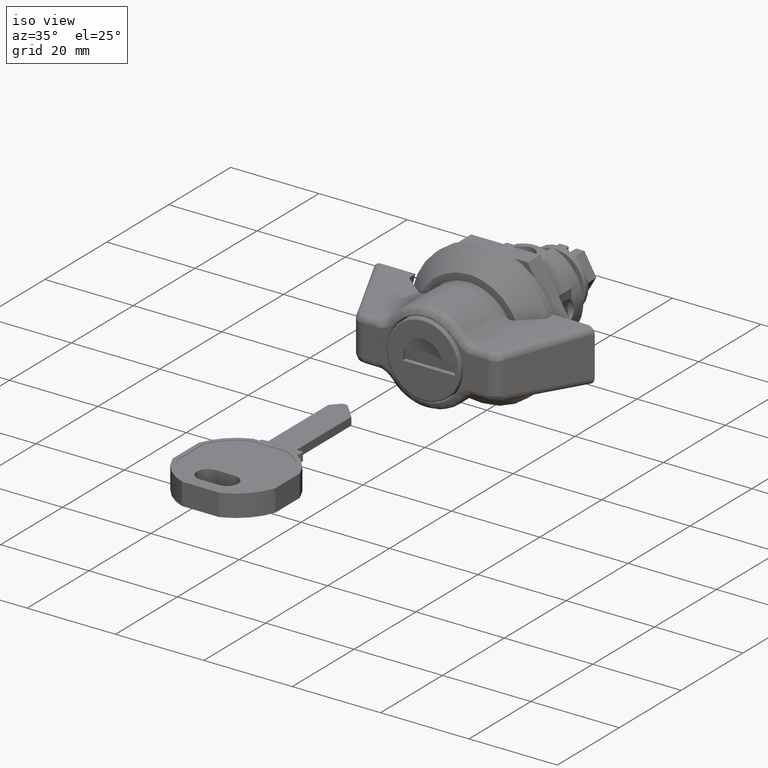
[diagram: clean part render]
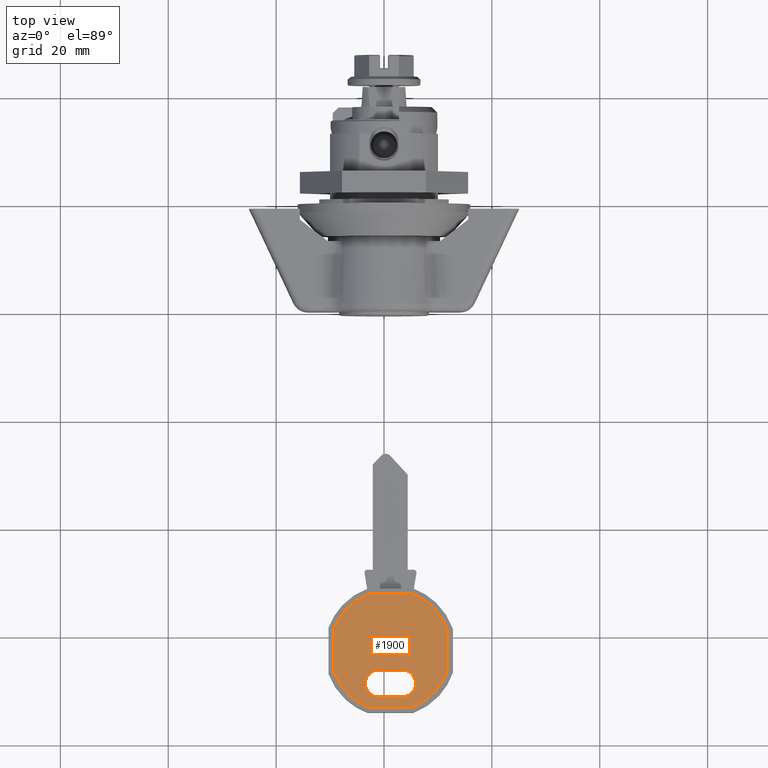
[diagram: tour spotlight — one face highlighted and labeled with its STEP entity id]
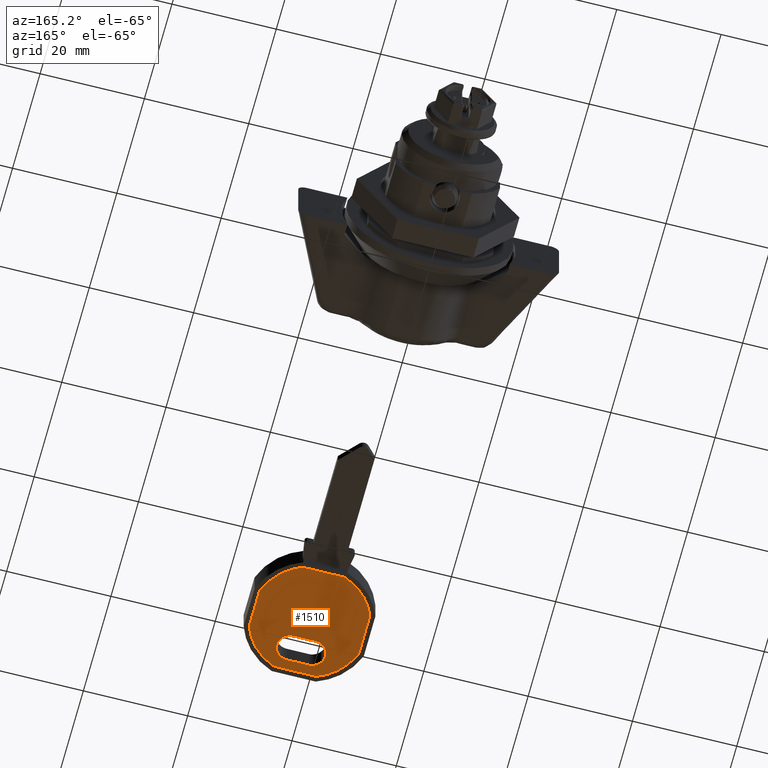
[diagram: tour spotlight — one face highlighted and labeled with its STEP entity id]
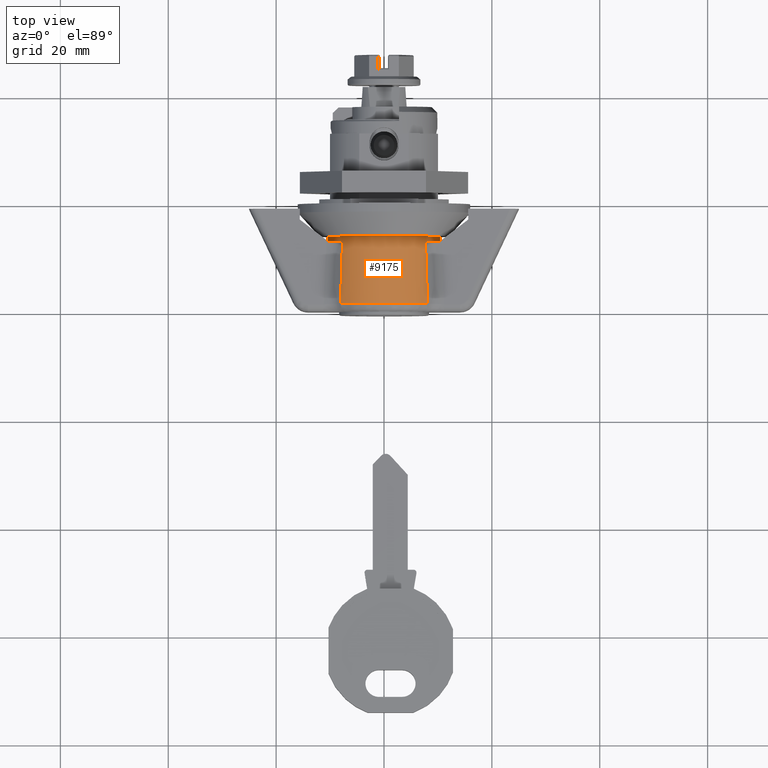
[diagram: tour spotlight — one face highlighted and labeled with its STEP entity id]
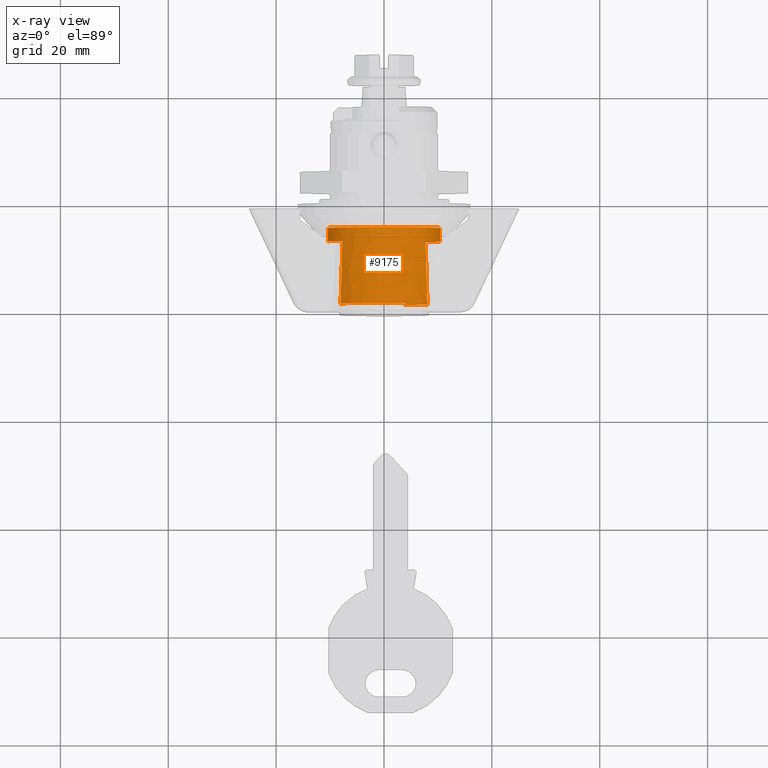
[diagram: x-ray of the same camera — body ghosted, this tour face saturated]
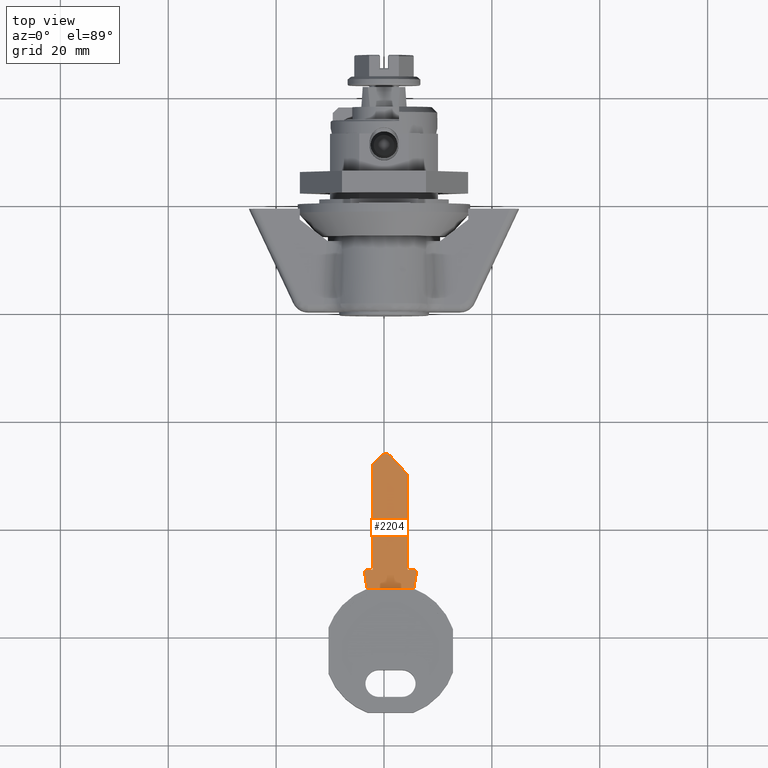
[diagram: tour spotlight — one face highlighted and labeled with its STEP entity id]
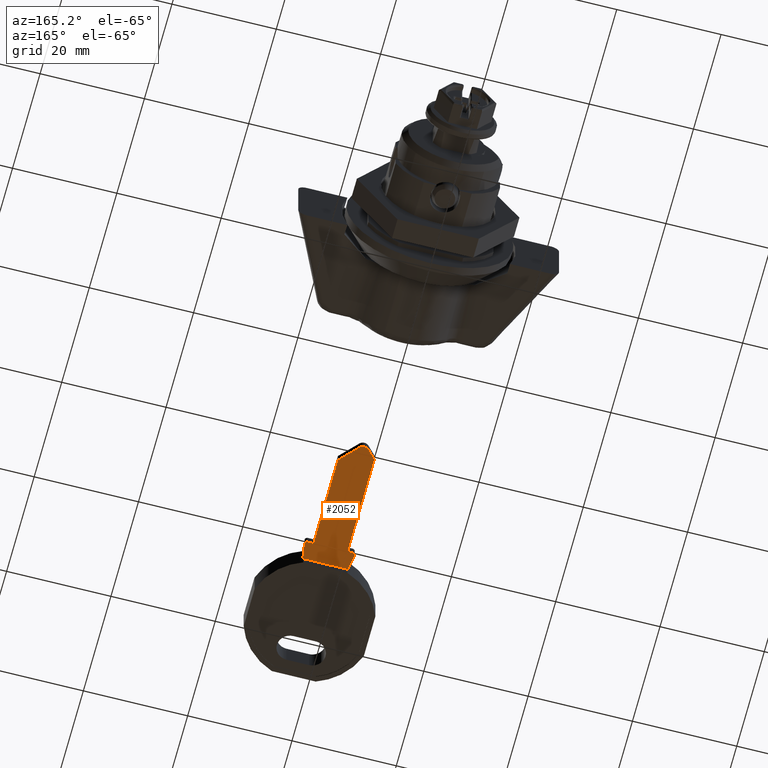
[diagram: tour spotlight — one face highlighted and labeled with its STEP entity id]
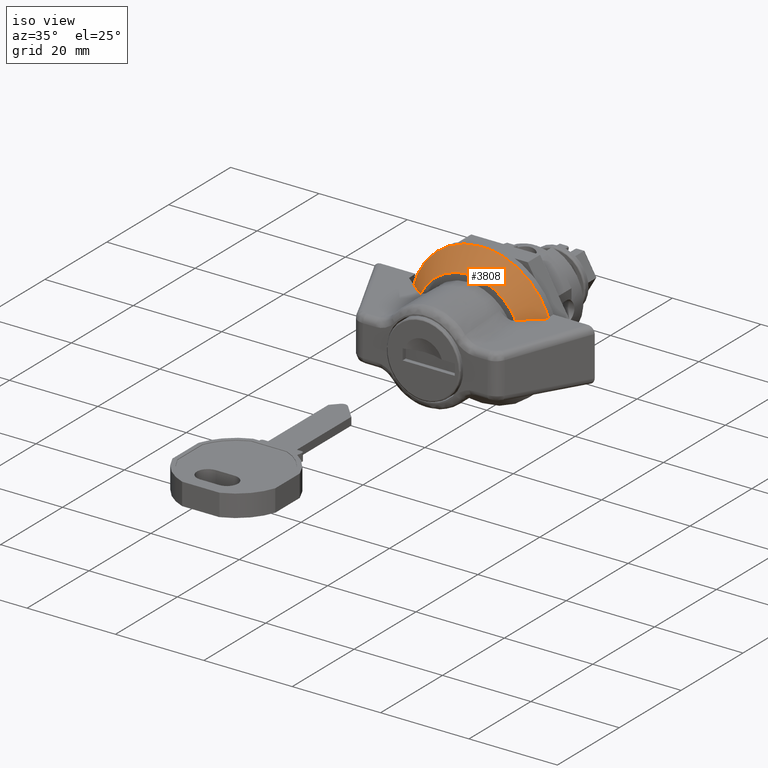
[diagram: tour spotlight — one face highlighted and labeled with its STEP entity id]
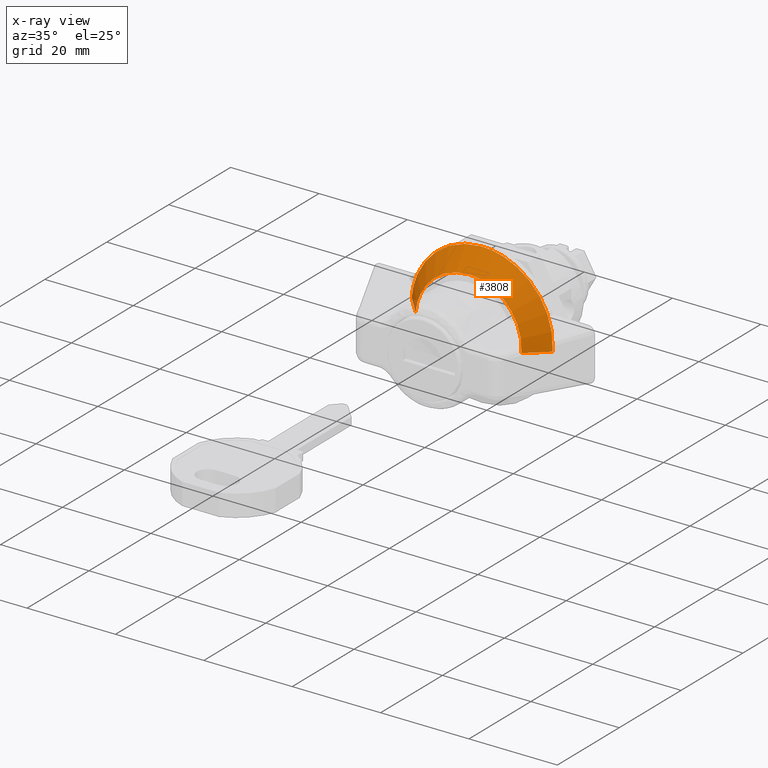
[diagram: x-ray of the same camera — body ghosted, this tour face saturated]
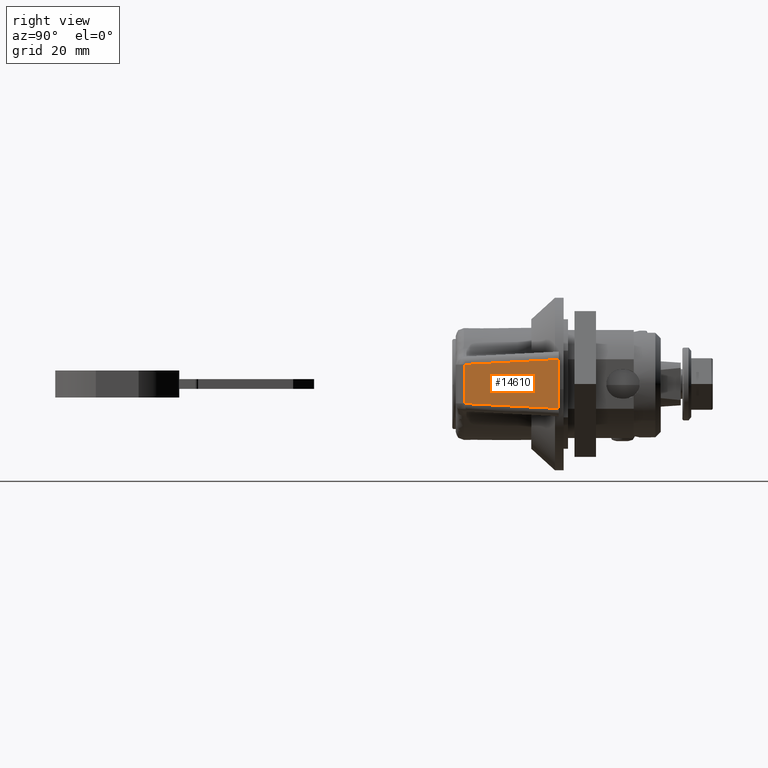
[diagram: tour spotlight — one face highlighted and labeled with its STEP entity id]
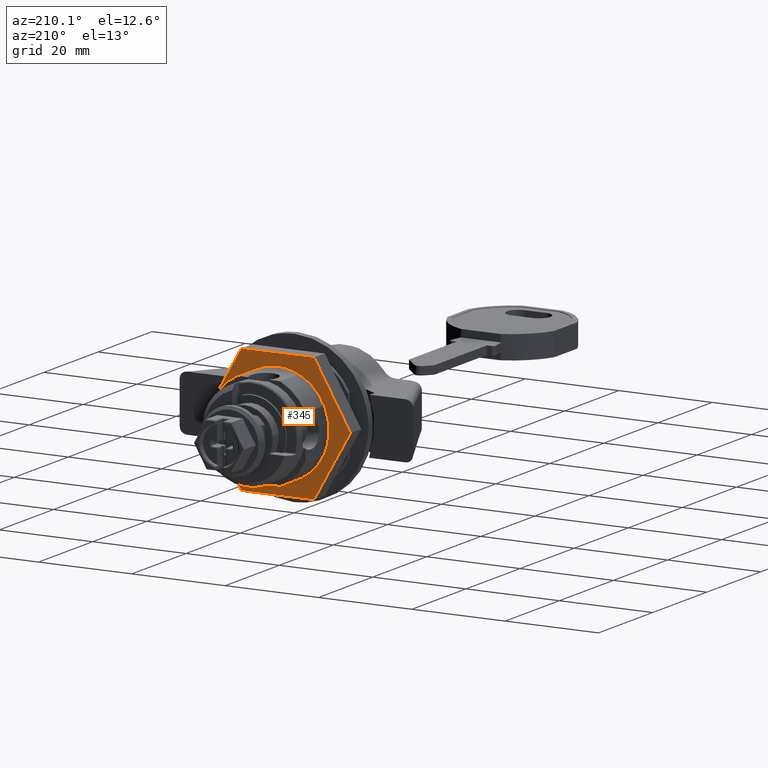
[diagram: tour spotlight — one face highlighted and labeled with its STEP entity id]
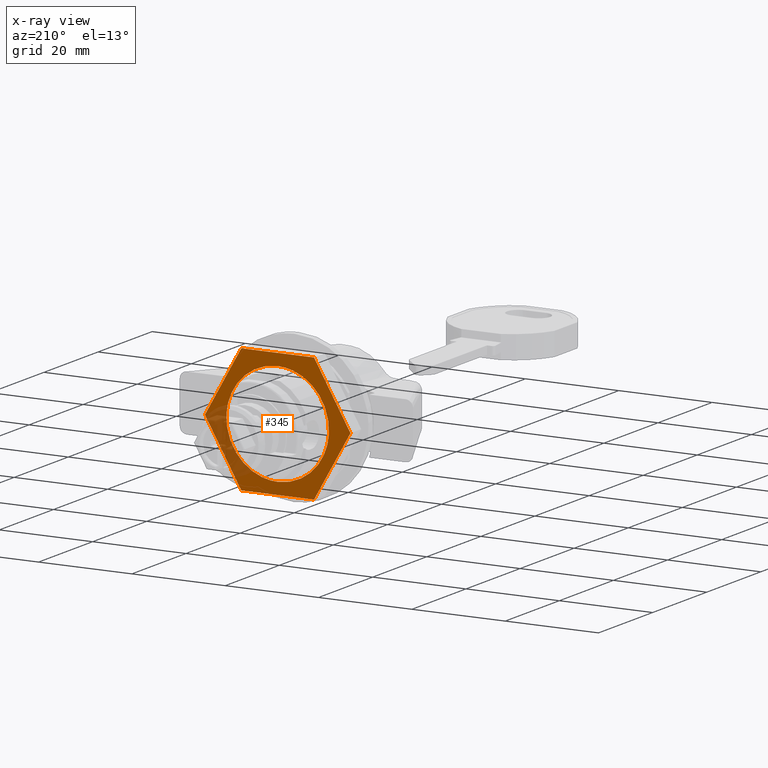
[diagram: x-ray of the same camera — body ghosted, this tour face saturated]
A machine part: a face-by-face anatomy tour. The part has 319 B-rep faces; the first image is the clean iso view, then the 8 largest visible faces are spotlighted one at a time (largest first), each with its STEP entity span.

Face 1 — top view, entity #1900. In plain terms, the highlighted face is a freeform B-spline surface patch.
Definition (entity closure, byte-faithful):
#1542=CARTESIAN_POINT('',(-58.622116446291997,9.296573529506059,2.399999999999960));
#1543=VERTEX_POINT('',#1542);
#1549=CARTESIAN_POINT('',(-52.160989396904000,2.835446594893880,2.399999999999960));
#1550=VERTEX_POINT('',#1549);
#1551=CARTESIAN_POINT('',(-52.160989396903943,2.835446594893898,2.399999999999960));
#1552=CARTESIAN_POINT('',(-53.955879122310563,7.501683886990787,2.399999999999960));
#1553=CARTESIAN_POINT('',(-58.622116446291990,9.296573529506052,2.399999999999960));
#1561=(BOUNDED_CURVE()B_SPLINE_CURVE(2,(#1551,#1552,#1553),.UNSPECIFIED.,.F.,.U.)CURVE()GEOMETRIC_REPRESENTATION_ITEM()QUASI_UNIFORM_CURVE()RATIONAL_B_SPLINE_CURVE((1.0,0.913825425284822,1.0))REPRESENTATION_ITEM(''));
#1562=EDGE_CURVE('',#1550,#1543,#1561,.T.);
#1585=CARTESIAN_POINT('',(-52.160989396904000,-5.242300839961760,2.399999999999960));
#1586=VERTEX_POINT('',#1585);
#1587=CARTESIAN_POINT('',(-52.160989396904000,-5.242300839961760,2.399999999999960));
#1588=CARTESIAN_POINT('',(-52.160989396904000,2.835446594893880,2.399999999999960));
#1589=QUASI_UNIFORM_CURVE('',1,(#1587,#1588),.UNSPECIFIED.,.F.,.U.);
#1590=EDGE_CURVE('',#1586,#1550,#1589,.T.);
#1630=CARTESIAN_POINT('',(-58.873145960881502,-11.796573529506020,2.399999999999960));
#1631=VERTEX_POINT('',#1630);
#1632=CARTESIAN_POINT('',(-58.873145960881480,-11.796573529506070,2.399999999999960));
#1633=CARTESIAN_POINT('',(-54.013744689954912,-10.058973262333234,2.399999999999960));
#1634=CARTESIAN_POINT('',(-52.160989396903993,-5.242300839961763,2.399999999999960));
#1642=(BOUNDED_CURVE()B_SPLINE_CURVE(2,(#1632,#1633,#1634),.UNSPECIFIED.,.F.,.U.)CURVE()GEOMETRIC_REPRESENTATION_ITEM()QUASI_UNIFORM_CURVE()RATIONAL_B_SPLINE_CURVE((1.0,0.908927978377635,1.0))REPRESENTATION_ITEM(''));
#1643=EDGE_CURVE('',#1631,#1586,#1642,.T.);
#1666=CARTESIAN_POINT('',(-66.448833993512707,-11.796573529506100,2.399999999999960));
#1667=VERTEX_POINT('',#1666);
#1668=CARTESIAN_POINT('',(-66.448833993512707,-11.796573529506100,2.399999999999960));
#1669=CARTESIAN_POINT('',(-58.873145960881502,-11.796573529506020,2.399999999999960));
#1670=QUASI_UNIFORM_CURVE('',1,(#1668,#1669),.UNSPECIFIED.,.F.,.U.);
#1671=EDGE_CURVE('',#1667,#1631,#1670,.T.);
#1711=CARTESIAN_POINT('',(-73.160990662055198,-5.242300568120299,2.399999999999960));
#1712=VERTEX_POINT('',#1711);
#1713=CARTESIAN_POINT('',(-73.160990662055312,-5.242300568120341,2.399999999999960));
#1714=CARTESIAN_POINT('',(-71.308235430421846,-10.058973202982084,2.399999999999960));
#1715=CARTESIAN_POINT('',(-66.448833993512721,-11.796573529506119,2.399999999999960));
#1723=(BOUNDED_CURVE()B_SPLINE_CURVE(2,(#1713,#1714,#1715),.UNSPECIFIED.,.F.,.U.)CURVE()GEOMETRIC_REPRESENTATION_ITEM()QUASI_UNIFORM_CURVE()RATIONAL_B_SPLINE_CURVE((1.0,0.908927972980247,1.0))REPRESENTATION_ITEM(''));
#1724=EDGE_CURVE('',#1712,#1667,#1723,.T.);
#1747=CARTESIAN_POINT('',(-73.160990662055099,2.835446323052715,2.399999999999960));
#1748=VERTEX_POINT('',#1747);
#1749=CARTESIAN_POINT('',(-73.160990662055099,2.835446323052715,2.399999999999960));
#1750=CARTESIAN_POINT('',(-73.160990662055198,-5.242300568120299,2.399999999999960));
#1751=QUASI_UNIFORM_CURVE('',1,(#1749,#1750),.UNSPECIFIED.,.F.,.U.);
#1752=EDGE_CURVE('',#1748,#1712,#1751,.T.);
#1792=CARTESIAN_POINT('',(-66.699863508102197,9.296573529506000,2.399999999999960));
#1793=VERTEX_POINT('',#1792);
#1794=CARTESIAN_POINT('',(-66.699863508102197,9.296573529505995,2.399999999999960));
#1795=CARTESIAN_POINT('',(-71.366100994847727,7.501683824382766,2.399999999999961));
#1796=CARTESIAN_POINT('',(-73.160990662055141,2.835446323052735,2.399999999999960));
#1804=(BOUNDED_CURVE()B_SPLINE_CURVE(2,(#1794,#1795,#1796),.UNSPECIFIED.,.F.,.U.)CURVE()GEOMETRIC_REPRESENTATION_ITEM()QUASI_UNIFORM_CURVE()RATIONAL_B_SPLINE_CURVE((1.0,0.913825420027838,1.0))REPRESENTATION_ITEM(''));
#1805=EDGE_CURVE('',#1793,#1748,#1804,.T.);
#1826=CARTESIAN_POINT('',(-58.622116446291997,9.296573529506059,2.399999999999960));
#1827=CARTESIAN_POINT('',(-66.699863508102197,9.296573529506000,2.399999999999960));
#1828=QUASI_UNIFORM_CURVE('',1,(#1826,#1827),.UNSPECIFIED.,.F.,.U.);
#1829=EDGE_CURVE('',#1543,#1793,#1828,.T.);
#1835=CARTESIAN_POINT('',(-74.209937802579390,10.350176382228479,2.400000000000000));
#1836=CARTESIAN_POINT('',(-51.112037374759112,10.350176382228479,2.400000000000000));
#1837=CARTESIAN_POINT('',(-74.209937802579390,-12.850176759403389,2.400000000000000));
#1838=CARTESIAN_POINT('',(-51.112037374759112,-12.850176759403389,2.400000000000000));
#1839=B_SPLINE_SURFACE_WITH_KNOTS('',1,1,((#1835,#1837),(#1836,#1838)),.UNSPECIFIED.,.F.,.F.,.U.,(2,2),(2,2),(0.0,23.097900427820282),(0.0,23.200353141631862),.UNSPECIFIED.);
#1840=ORIENTED_EDGE('',*,*,#1829,.T.);
#1841=ORIENTED_EDGE('',*,*,#1805,.T.);
#1842=ORIENTED_EDGE('',*,*,#1752,.T.);
#1843=ORIENTED_EDGE('',*,*,#1724,.T.);
#1844=ORIENTED_EDGE('',*,*,#1671,.T.);
#1845=ORIENTED_EDGE('',*,*,#1643,.T.);
#1846=ORIENTED_EDGE('',*,*,#1590,.T.);
#1847=ORIENTED_EDGE('',*,*,#1562,.T.);
#1848=EDGE_LOOP('',(#1840,#1841,#1842,#1843,#1844,#1845,#1846,#1847));
#1849=FACE_OUTER_BOUND('',#1848,.T.);
#1850=CARTESIAN_POINT('',(-71.260990385675200,-3.353427224653415,2.399999999999960));
#1851=VERTEX_POINT('',#1850);
#1852=CARTESIAN_POINT('',(-71.260990385675200,0.946572979585597,2.399999999999960));
#1853=VERTEX_POINT('',#1852);
#1854=CARTESIAN_POINT('',(-71.260990385675200,-3.353427224653415,2.399999999999960));
#1855=CARTESIAN_POINT('',(-71.260990385675200,0.946572979585597,2.399999999999960));
#1856=QUASI_UNIFORM_CURVE('',1,(#1854,#1855),.UNSPECIFIED.,.F.,.U.);
#1857=EDGE_CURVE('',#1851,#1853,#1856,.T.);
#1858=ORIENTED_EDGE('',*,*,#1857,.T.);
#1859=CARTESIAN_POINT('',(-66.260990148187901,0.946572979585596,2.399999999999960));
#1860=VERTEX_POINT('',#1859);
#1861=CARTESIAN_POINT('',(-66.260990148187872,0.946572979585596,2.399999999999960));
#1862=CARTESIAN_POINT('',(-66.260990148187886,3.446573098329227,2.399999999999960));
#1863=CARTESIAN_POINT('',(-68.760990266931501,3.446573098329226,2.399999999999960));
#1864=CARTESIAN_POINT('',(-71.260990385675143,3.446573098329227,2.399999999999960));
#1865=CARTESIAN_POINT('',(-71.260990385675129,0.946572979585596,2.399999999999960));
#1873=(BOUNDED_CURVE()B_SPLINE_CURVE(2,(#1861,#1862,#1863,#1864,#1865),.UNSPECIFIED.,.F.,.U.)B_SPLINE_CURVE_WITH_KNOTS((3,2,3),(0.0,0.500000000000000,1.0),.UNSPECIFIED.)CURVE()GEOMETRIC_REPRESENTATION_ITEM()RATIONAL_B_SPLINE_CURVE((1.0,0.707106781186548,1.0,0.707106781186548,1.0))REPRESENTATION_ITEM(''));
#1874=EDGE_CURVE('',#1860,#1853,#1873,.T.);
#1875=ORIENTED_EDGE('',*,*,#1874,.F.);
#1876=CARTESIAN_POINT('',(-66.260990148187901,-3.353427224653415,2.399999999999960));
#1877=VERTEX_POINT('',#1876);
#1878=CARTESIAN_POINT('',(-66.260990148187901,0.946572979585596,2.399999999999960));
#1879=CARTESIAN_POINT('',(-66.260990148187901,-3.353427224653415,2.399999999999960));
#1880=QUASI_UNIFORM_CURVE('',1,(#1878,#1879),.UNSPECIFIED.,.F.,.U.);
#1881=EDGE_CURVE('',#1860,#1877,#1880,.T.);
#1882=ORIENTED_EDGE('',*,*,#1881,.T.);
#1883=CARTESIAN_POINT('',(-71.260990385675129,-3.353427224653415,2.399999999999960));
#1884=CARTESIAN_POINT('',(-71.260990385675143,-5.853427343397045,2.399999999999960));
#1885=CARTESIAN_POINT('',(-68.760990266931501,-5.853427343397045,2.399999999999960));
#1886=CARTESIAN_POINT('',(-66.260990148187886,-5.853427343397045,2.399999999999960));
#1887=CARTESIAN_POINT('',(-66.260990148187872,-3.353427224653415,2.399999999999960));
#1895=(BOUNDED_CURVE()B_SPLINE_CURVE(2,(#1883,#1884,#1885,#1886,#1887),.UNSPECIFIED.,.F.,.U.)B_SPLINE_CURVE_WITH_KNOTS((3,2,3),(0.0,0.500000000000000,1.0),.UNSPECIFIED.)CURVE()GEOMETRIC_REPRESENTATION_ITEM()RATIONAL_B_SPLINE_CURVE((1.0,0.707106781186548,1.0,0.707106781186548,1.0))REPRESENTATION_ITEM(''));
#1896=EDGE_CURVE('',#1851,#1877,#1895,.T.);
#1897=ORIENTED_EDGE('',*,*,#1896,.F.);
#1898=EDGE_LOOP('',(#1858,#1875,#1882,#1897));
#1899=FACE_BOUND('',#1898,.T.);
#1900=ADVANCED_FACE('',(#1849,#1899),#1839,.F.);

Face 2 — auxiliary view, entity #1510. In plain terms, the highlighted face is a freeform B-spline surface patch.
Definition (entity closure, byte-faithful):
#1152=CARTESIAN_POINT('',(-52.160989396904000,2.835446594893880,-2.399999999999960));
#1153=VERTEX_POINT('',#1152);
#1159=CARTESIAN_POINT('',(-58.622116446291997,9.296573529506059,-2.399999999999960));
#1160=VERTEX_POINT('',#1159);
#1161=CARTESIAN_POINT('',(-52.160989396903943,2.835446594893898,-2.399999999999960));
#1162=CARTESIAN_POINT('',(-53.955879122310563,7.501683886990787,-2.399999999999960));
#1163=CARTESIAN_POINT('',(-58.622116446291990,9.296573529506052,-2.399999999999960));
#1171=(BOUNDED_CURVE()B_SPLINE_CURVE(2,(#1161,#1162,#1163),.UNSPECIFIED.,.F.,.U.)CURVE()GEOMETRIC_REPRESENTATION_ITEM()QUASI_UNIFORM_CURVE()RATIONAL_B_SPLINE_CURVE((1.0,0.913825425284822,1.0))REPRESENTATION_ITEM(''));
#1172=EDGE_CURVE('',#1153,#1160,#1171,.T.);
#1194=CARTESIAN_POINT('',(-52.160989396904000,-5.242300839961760,-2.399999999999960));
#1195=VERTEX_POINT('',#1194);
#1201=CARTESIAN_POINT('',(-52.160989396904000,-5.242300839961760,-2.399999999999960));
#1202=CARTESIAN_POINT('',(-52.160989396904000,2.835446594893880,-2.399999999999960));
#1203=QUASI_UNIFORM_CURVE('',1,(#1201,#1202),.UNSPECIFIED.,.F.,.U.);
#1204=EDGE_CURVE('',#1195,#1153,#1203,.T.);
#1239=CARTESIAN_POINT('',(-58.873145960881502,-11.796573529506020,-2.399999999999960));
#1240=VERTEX_POINT('',#1239);
#1246=CARTESIAN_POINT('',(-58.873145960881480,-11.796573529506070,-2.399999999999960));
#1247=CARTESIAN_POINT('',(-54.013744689954912,-10.058973262333234,-2.399999999999960));
#1248=CARTESIAN_POINT('',(-52.160989396903993,-5.242300839961763,-2.399999999999960));
#1256=(BOUNDED_CURVE()B_SPLINE_CURVE(2,(#1246,#1247,#1248),.UNSPECIFIED.,.F.,.U.)CURVE()GEOMETRIC_REPRESENTATION_ITEM()QUASI_UNIFORM_CURVE()RATIONAL_B_SPLINE_CURVE((1.0,0.908927978377635,1.0))REPRESENTATION_ITEM(''));
#1257=EDGE_CURVE('',#1240,#1195,#1256,.T.);
#1275=CARTESIAN_POINT('',(-66.448833993512707,-11.796573529506100,-2.399999999999960));
#1276=VERTEX_POINT('',#1275);
#1282=CARTESIAN_POINT('',(-66.448833993512707,-11.796573529506100,-2.399999999999960));
#1283=CARTESIAN_POINT('',(-58.873145960881502,-11.796573529506020,-2.399999999999960));
#1284=QUASI_UNIFORM_CURVE('',1,(#1282,#1283),.UNSPECIFIED.,.F.,.U.);
#1285=EDGE_CURVE('',#1276,#1240,#1284,.T.);
#1320=CARTESIAN_POINT('',(-73.160990662055198,-5.242300568120299,-2.399999999999960));
#1321=VERTEX_POINT('',#1320);
#1327=CARTESIAN_POINT('',(-73.160990662055312,-5.242300568120341,-2.399999999999960));
#1328=CARTESIAN_POINT('',(-71.308235430421846,-10.058973202982084,-2.399999999999960));
#1329=CARTESIAN_POINT('',(-66.448833993512721,-11.796573529506119,-2.399999999999960));
#1337=(BOUNDED_CURVE()B_SPLINE_CURVE(2,(#1327,#1328,#1329),.UNSPECIFIED.,.F.,.U.)CURVE()GEOMETRIC_REPRESENTATION_ITEM()QUASI_UNIFORM_CURVE()RATIONAL_B_SPLINE_CURVE((1.0,0.908927972980247,1.0))REPRESENTATION_ITEM(''));
#1338=EDGE_CURVE('',#1321,#1276,#1337,.T.);
#1356=CARTESIAN_POINT('',(-73.160990662055099,2.835446323052715,-2.399999999999960));
#1357=VERTEX_POINT('',#1356);
#1363=CARTESIAN_POINT('',(-73.160990662055099,2.835446323052715,-2.399999999999960));
#1364=CARTESIAN_POINT('',(-73.160990662055198,-5.242300568120299,-2.399999999999960));
#1365=QUASI_UNIFORM_CURVE('',1,(#1363,#1364),.UNSPECIFIED.,.F.,.U.);
#1366=EDGE_CURVE('',#1357,#1321,#1365,.T.);
#1401=CARTESIAN_POINT('',(-66.699863508102197,9.296573529506000,-2.399999999999960));
#1402=VERTEX_POINT('',#1401);
#1408=CARTESIAN_POINT('',(-66.699863508102197,9.296573529505995,-2.399999999999960));
#1409=CARTESIAN_POINT('',(-71.366100994847727,7.501683824382766,-2.399999999999961));
#1410=CARTESIAN_POINT('',(-73.160990662055141,2.835446323052735,-2.399999999999960));
#1418=(BOUNDED_CURVE()B_SPLINE_CURVE(2,(#1408,#1409,#1410),.UNSPECIFIED.,.F.,.U.)CURVE()GEOMETRIC_REPRESENTATION_ITEM()QUASI_UNIFORM_CURVE()RATIONAL_B_SPLINE_CURVE((1.0,0.913825420027838,1.0))REPRESENTATION_ITEM(''));
#1419=EDGE_CURVE('',#1402,#1357,#1418,.T.);
#1436=CARTESIAN_POINT('',(-58.622116446291997,9.296573529506059,-2.399999999999960));
#1437=CARTESIAN_POINT('',(-66.699863508102197,9.296573529506000,-2.399999999999960));
#1438=QUASI_UNIFORM_CURVE('',1,(#1436,#1437),.UNSPECIFIED.,.F.,.U.);
#1439=EDGE_CURVE('',#1160,#1402,#1438,.T.);
#1445=CARTESIAN_POINT('',(-74.209937802579390,-12.850176382228520,-2.400000000000000));
#1446=CARTESIAN_POINT('',(-51.112037374759112,-12.850176382228520,-2.400000000000000));
#1447=CARTESIAN_POINT('',(-74.209937802579390,10.350176759403340,-2.400000000000000));
#1448=CARTESIAN_POINT('',(-51.112037374759112,10.350176759403340,-2.400000000000000));
#1449=B_SPLINE_SURFACE_WITH_KNOTS('',1,1,((#1445,#1447),(#1446,#1448)),.UNSPECIFIED.,.F.,.F.,.U.,(2,2),(2,2),(0.0,23.097900427820282),(0.0,23.200353141631862),.UNSPECIFIED.);
#1450=ORIENTED_EDGE('',*,*,#1439,.F.);
#1451=ORIENTED_EDGE('',*,*,#1172,.F.);
#1452=ORIENTED_EDGE('',*,*,#1204,.F.);
#1453=ORIENTED_EDGE('',*,*,#1257,.F.);
#1454=ORIENTED_EDGE('',*,*,#1285,.F.);
#1455=ORIENTED_EDGE('',*,*,#1338,.F.);
#1456=ORIENTED_EDGE('',*,*,#1366,.F.);
#1457=ORIENTED_EDGE('',*,*,#1419,.F.);
#1458=EDGE_LOOP('',(#1450,#1451,#1452,#1453,#1454,#1455,#1456,#1457));
#1459=FACE_OUTER_BOUND('',#1458,.T.);
#1460=CARTESIAN_POINT('',(-71.260990385675200,0.946572979585597,-2.399999999999960));
#1461=VERTEX_POINT('',#1460);
#1462=CARTESIAN_POINT('',(-71.260990385675200,-3.353427224653415,-2.399999999999960));
#1463=VERTEX_POINT('',#1462);
#1464=CARTESIAN_POINT('',(-71.260990385675200,0.946572979585597,-2.399999999999960));
#1465=CARTESIAN_POINT('',(-71.260990385675200,-3.353427224653415,-2.399999999999960));
#1466=QUASI_UNIFORM_CURVE('',1,(#1464,#1465),.UNSPECIFIED.,.F.,.U.);
#1467=EDGE_CURVE('',#1461,#1463,#1466,.T.);
#1468=ORIENTED_EDGE('',*,*,#1467,.T.);
#1469=CARTESIAN_POINT('',(-66.260990148187901,-3.353427224653415,-2.399999999999960));
#1470=VERTEX_POINT('',#1469);
#1471=CARTESIAN_POINT('',(-66.260990148187872,-3.353427224653415,-2.399999999999960));
#1472=CARTESIAN_POINT('',(-66.260990148187886,-5.853427343397045,-2.399999999999960));
#1473=CARTESIAN_POINT('',(-68.760990266931501,-5.853427343397045,-2.399999999999960));
#1474=CARTESIAN_POINT('',(-71.260990385675143,-5.853427343397045,-2.399999999999960));
#1475=CARTESIAN_POINT('',(-71.260990385675129,-3.353427224653415,-2.399999999999960));
#1483=(BOUNDED_CURVE()B_SPLINE_CURVE(2,(#1471,#1472,#1473,#1474,#1475),.UNSPECIFIED.,.F.,.U.)B_SPLINE_CURVE_WITH_KNOTS((3,2,3),(0.0,0.500000000000000,1.0),.UNSPECIFIED.)CURVE()GEOMETRIC_REPRESENTATION_ITEM()RATIONAL_B_SPLINE_CURVE((1.0,0.707106781186548,1.0,0.707106781186548,1.0))REPRESENTATION_ITEM(''));
#1484=EDGE_CURVE('',#1470,#1463,#1483,.T.);
#1485=ORIENTED_EDGE('',*,*,#1484,.F.);
#1486=CARTESIAN_POINT('',(-66.260990148187901,0.946572979585596,-2.399999999999960));
#1487=VERTEX_POINT('',#1486);
#1488=CARTESIAN_POINT('',(-66.260990148187901,-3.353427224653415,-2.399999999999960));
#1489=CARTESIAN_POINT('',(-66.260990148187901,0.946572979585596,-2.399999999999960));
#1490=QUASI_UNIFORM_CURVE('',1,(#1488,#1489),.UNSPECIFIED.,.F.,.U.);
#1491=EDGE_CURVE('',#1470,#1487,#1490,.T.);
#1492=ORIENTED_EDGE('',*,*,#1491,.T.);
#1493=CARTESIAN_POINT('',(-71.260990385675129,0.946572979585596,-2.399999999999960));
#1494=CARTESIAN_POINT('',(-71.260990385675143,3.446573098329227,-2.399999999999960));
#1495=CARTESIAN_POINT('',(-68.760990266931501,3.446573098329226,-2.399999999999960));
#1496=CARTESIAN_POINT('',(-66.260990148187886,3.446573098329227,-2.399999999999960));
#1497=CARTESIAN_POINT('',(-66.260990148187872,0.946572979585596,-2.399999999999960));
#1505=(BOUNDED_CURVE()B_SPLINE_CURVE(2,(#1493,#1494,#1495,#1496,#1497),.UNSPECIFIED.,.F.,.U.)B_SPLINE_CURVE_WITH_KNOTS((3,2,3),(0.0,0.500000000000000,1.0),.UNSPECIFIED.)CURVE()GEOMETRIC_REPRESENTATION_ITEM()RATIONAL_B_SPLINE_CURVE((1.0,0.707106781186548,1.0,0.707106781186548,1.0))REPRESENTATION_ITEM(''));
#1506=EDGE_CURVE('',#1461,#1487,#1505,.T.);
#1507=ORIENTED_EDGE('',*,*,#1506,.F.);
#1508=EDGE_LOOP('',(#1468,#1485,#1492,#1507));
#1509=FACE_BOUND('',#1508,.T.);
#1510=ADVANCED_FACE('',(#1459,#1509),#1449,.F.);

Face 3 — top view, entity #9175. An x-ray twin of the same camera follows (body ghosted, this face saturated) — the face is partly hidden behind the body. In plain terms, the highlighted face is a freeform B-spline surface patch.
Definition (entity closure, byte-faithful):
#8996=CARTESIAN_POINT('',(-3.947500563729591,-3.759103602234541,-9.696862384692652));
#8997=CARTESIAN_POINT('',(-3.947500563729590,-10.462341702676378,-7.098272707913877));
#8998=CARTESIAN_POINT('',(-3.947500563729590,-10.399603999867381,0.090755969183088));
#8999=CARTESIAN_POINT('',(-3.947500563729589,-10.308848030684290,10.490359969050468));
#9000=CARTESIAN_POINT('',(-3.947500563729590,0.090755969183088,10.399603999867381));
#9001=CARTESIAN_POINT('',(-3.947500563729589,10.490359969050468,10.308848030684290));
#9002=CARTESIAN_POINT('',(-3.947500563729590,10.399603999867381,-0.090755969183088));
#9003=CARTESIAN_POINT('',(-18.761313063729602,-3.759103602234541,-9.696862384692652));
#9004=CARTESIAN_POINT('',(-18.761313063729602,-10.462341702676378,-7.098272707913877));
#9005=CARTESIAN_POINT('',(-18.761313063729599,-10.399603999867381,0.090755969183088));
#9006=CARTESIAN_POINT('',(-18.761313063729595,-10.308848030684290,10.490359969050468));
#9007=CARTESIAN_POINT('',(-18.761313063729599,0.090755969183088,10.399603999867381));
#9008=CARTESIAN_POINT('',(-18.761313063729595,10.490359969050468,10.308848030684290));
#9009=CARTESIAN_POINT('',(-18.761313063729599,10.399603999867381,-0.090755969183088));
#9017=(BOUNDED_SURFACE()B_SPLINE_SURFACE(2,1,((#8996,#9003),(#8997,#9004),(#8998,#9005),(#8999,#9006),(#9000,#9007),(#9001,#9008),(#9002,#9009)),.UNSPECIFIED.,.F.,.F.,.U.)B_SPLINE_SURFACE_WITH_KNOTS((3,2,2,3),(2,2),(0.0,13.095775987987770,30.327060182708522,47.558344377429272),(0.0,14.813812500000020),.UNSPECIFIED.)GEOMETRIC_REPRESENTATION_ITEM()RATIONAL_B_SPLINE_SURFACE(((0.893152553776853,0.893152553776853),(0.777401153701776,0.777401153701776),(1.0,1.0),(0.707106781186548,0.707106781186548),(1.0,1.0),(0.707106781186548,0.707106781186548),(1.0,1.0)))REPRESENTATION_ITEM('')SURFACE());
#9018=CARTESIAN_POINT('',(-18.400000563729300,-8.069543442598590,-6.560675927678040));
#9019=VERTEX_POINT('',#9018);
#9020=CARTESIAN_POINT('',(-18.400000563729581,-3.759099742342011,-9.696863881023962));
#9021=VERTEX_POINT('',#9020);
#9022=CARTESIAN_POINT('',(-18.400000563729300,-8.069543442598590,-6.560675927678040));
#9023=CARTESIAN_POINT('',(-18.400000563729474,-6.330078274151354,-8.700194766652295));
#9024=CARTESIAN_POINT('',(-18.400000563729581,-3.759099742342011,-9.696863881023962));
#9032=(BOUNDED_CURVE()B_SPLINE_CURVE(2,(#9022,#9023,#9024),.UNSPECIFIED.,.F.,.U.)B_SPLINE_CURVE_WITH_KNOTS((3,3),(0.0,0.291134522153438),.UNSPECIFIED.)CURVE()GEOMETRIC_REPRESENTATION_ITEM()RATIONAL_B_SPLINE_CURVE((1.0,0.943522518040515,0.952815214971846))REPRESENTATION_ITEM(''));
#9033=EDGE_CURVE('',#9019,#9021,#9032,.T.);
#9034=ORIENTED_EDGE('',*,*,#9033,.T.);
#9035=CARTESIAN_POINT('',(-4.300000563729590,-3.759087515139685,-9.696868621014891));
#9036=VERTEX_POINT('',#9035);
#9037=CARTESIAN_POINT('',(-4.300000563729590,-3.759087515139685,-9.696868621014891));
#9038=CARTESIAN_POINT('',(-18.400000563729581,-3.759099742342011,-9.696863881023962));
#9039=QUASI_UNIFORM_CURVE('',1,(#9037,#9038),.UNSPECIFIED.,.F.,.U.);
#9040=EDGE_CURVE('',#9036,#9021,#9039,.T.);
#9041=ORIENTED_EDGE('',*,*,#9040,.F.);
#9042=CARTESIAN_POINT('',(-4.300000563729591,0.0,10.400000000000000));
#9043=VERTEX_POINT('',#9042);
#9044=CARTESIAN_POINT('',(-4.300000563729590,-3.759087515139685,-9.696868621014891));
#9045=CARTESIAN_POINT('',(-4.300000563729592,-10.400000000000002,-7.122452880584651));
#9046=CARTESIAN_POINT('',(-4.300000563729591,-10.400000000000000,0.0));
#9047=CARTESIAN_POINT('',(-4.300000563729591,-10.400000000000000,10.400000000000000));
#9048=CARTESIAN_POINT('',(-4.300000563729591,0.0,10.400000000000000));
#9056=(BOUNDED_CURVE()B_SPLINE_CURVE(2,(#9044,#9045,#9046,#9047,#9048),.UNSPECIFIED.,.F.,.U.)B_SPLINE_CURVE_WITH_KNOTS((3,2,3),(0.061376291156998,0.250000000000000,0.500000000000000),.UNSPECIFIED.)CURVE()GEOMETRIC_REPRESENTATION_ITEM()RATIONAL_B_SPLINE_CURVE((0.891493384707765,0.779013579089766,1.0,0.707106781186548,1.0))REPRESENTATION_ITEM(''));
#9057=EDGE_CURVE('',#9036,#9043,#9056,.T.);
#9058=ORIENTED_EDGE('',*,*,#9057,.T.);
#9059=CARTESIAN_POINT('',(-4.300000563729591,10.399603999866811,-0.090755969247995));
#9060=VERTEX_POINT('',#9059);
#9061=CARTESIAN_POINT('',(-4.300000563729591,0.0,10.400000000000000));
#9062=CARTESIAN_POINT('',(-4.300000563729591,10.400000000000000,10.400000000000000));
#9063=CARTESIAN_POINT('',(-4.300000563729591,10.400000000000000,0.0));
#9064=CARTESIAN_POINT('',(-4.300000563729590,10.399999999999999,-0.045378848600180));
#9065=CARTESIAN_POINT('',(-4.300000563729591,10.399603999866814,-0.090755969247995));
#9073=(BOUNDED_CURVE()B_SPLINE_CURVE(2,(#9061,#9062,#9063,#9064,#9065),.UNSPECIFIED.,.F.,.U.)B_SPLINE_CURVE_WITH_KNOTS((3,2,3),(0.500000000000000,0.750000000000000,0.751539894337185),.UNSPECIFIED.)CURVE()GEOMETRIC_REPRESENTATION_ITEM()RATIONAL_B_SPLINE_CURVE((1.0,0.707106781186548,1.0,0.998195901563797,0.996414028095320))REPRESENTATION_ITEM(''));
#9074=EDGE_CURVE('',#9043,#9060,#9073,.T.);
#9075=ORIENTED_EDGE('',*,*,#9074,.T.);
#9076=CARTESIAN_POINT('',(-6.799999941513038,10.399603995792500,-0.090756436115462));
#9077=VERTEX_POINT('',#9076);
#9078=CARTESIAN_POINT('',(-4.300000563729591,10.399603999866811,-0.090755969247995));
#9079=CARTESIAN_POINT('',(-6.799999941513038,10.399603995792500,-0.090756436115462));
#9080=QUASI_UNIFORM_CURVE('',1,(#9078,#9079),.UNSPECIFIED.,.F.,.U.);
#9081=EDGE_CURVE('',#9060,#9077,#9080,.T.);
#9082=ORIENTED_EDGE('',*,*,#9081,.T.);
#9083=CARTESIAN_POINT('',(-6.799999941513040,7.692188029060040,6.999303059990000));
#9084=VERTEX_POINT('',#9083);
#9085=CARTESIAN_POINT('',(-6.799999941513040,7.692188029060040,6.999303059990004));
#9086=CARTESIAN_POINT('',(-6.799999941513039,10.435171053506185,3.984782756508577));
#9087=CARTESIAN_POINT('',(-6.799999941513038,10.399603995792503,-0.090756436115462));
#9095=(BOUNDED_CURVE()B_SPLINE_CURVE(2,(#9085,#9086,#9087),.UNSPECIFIED.,.F.,.U.)B_SPLINE_CURVE_WITH_KNOTS((3,3),(0.0,0.505639374030946),.UNSPECIFIED.)CURVE()GEOMETRIC_REPRESENTATION_ITEM()RATIONAL_B_SPLINE_CURVE((1.0,0.868348427886578,0.869833292800398))REPRESENTATION_ITEM(''));
#9096=EDGE_CURVE('',#9084,#9077,#9095,.T.);
#9097=ORIENTED_EDGE('',*,*,#9096,.F.);
#9098=CARTESIAN_POINT('',(-18.400000563729499,8.069543442598601,6.560675927678020));
#9099=VERTEX_POINT('',#9098);
#9100=CARTESIAN_POINT('',(-6.799999941513040,7.692188029060040,6.999303059990000));
#9101=CARTESIAN_POINT('',(-12.461141046711033,7.886968928284610,6.785240132800946));
#9102=CARTESIAN_POINT('',(-18.400000563729449,8.069543442598603,6.560675927678025));
#9110=(BOUNDED_CURVE()B_SPLINE_CURVE(2,(#9100,#9101,#9102),.UNSPECIFIED.,.F.,.U.)CURVE()GEOMETRIC_REPRESENTATION_ITEM()QUASI_UNIFORM_CURVE()RATIONAL_B_SPLINE_CURVE((1.0,0.999613008896240,1.0))REPRESENTATION_ITEM(''));
#9111=EDGE_CURVE('',#9084,#9099,#9110,.T.);
#9112=ORIENTED_EDGE('',*,*,#9111,.T.);
#9113=CARTESIAN_POINT('',(-18.400000563729598,-8.069543442598611,6.560675927678020));
#9114=VERTEX_POINT('',#9113);
#9115=CARTESIAN_POINT('',(-18.400000563729499,8.069543442598601,6.560675927678020));
#9116=CARTESIAN_POINT('',(-18.400000563729602,4.948107738210578,10.400000000000000));
#9117=CARTESIAN_POINT('',(-18.400000563729598,0.0,10.400000000000000));
#9118=CARTESIAN_POINT('',(-18.400000563729602,-4.948107738210576,10.400000000000000));
#9119=CARTESIAN_POINT('',(-18.400000563729598,-8.069543442598603,6.560675927678022));
#9127=(BOUNDED_CURVE()B_SPLINE_CURVE(2,(#9115,#9116,#9117,#9118,#9119),.UNSPECIFIED.,.F.,.U.)B_SPLINE_CURVE_WITH_KNOTS((3,2,3),(0.0,0.500000000000000,1.0),.UNSPECIFIED.)CURVE()GEOMETRIC_REPRESENTATION_ITEM()RATIONAL_B_SPLINE_CURVE((1.0,0.903004491632017,1.0,0.903004491632017,1.0))REPRESENTATION_ITEM(''));
#9128=EDGE_CURVE('',#9099,#9114,#9127,.T.);
#9129=ORIENTED_EDGE('',*,*,#9128,.T.);
#9130=CARTESIAN_POINT('',(-6.799999941513040,-7.692188029060049,6.999303059990000));
#9131=VERTEX_POINT('',#9130);
#9132=CARTESIAN_POINT('',(-18.400000563729598,-8.069543442598611,6.560675927678020));
#9133=CARTESIAN_POINT('',(-12.461141046711445,-7.886968928284624,6.785240132800930));
#9134=CARTESIAN_POINT('',(-6.799999941513063,-7.692188029060050,6.999303059989992));
#9142=(BOUNDED_CURVE()B_SPLINE_CURVE(2,(#9132,#9133,#9134),.UNSPECIFIED.,.F.,.U.)CURVE()GEOMETRIC_REPRESENTATION_ITEM()QUASI_UNIFORM_CURVE()RATIONAL_B_SPLINE_CURVE((1.0,0.999613008895715,1.0))REPRESENTATION_ITEM(''));
#9143=EDGE_CURVE('',#9114,#9131,#9142,.T.);
#9144=ORIENTED_EDGE('',*,*,#9143,.T.);
#9145=CARTESIAN_POINT('',(-6.799999941513040,-7.692188029060030,-6.999303059990010));
#9146=VERTEX_POINT('',#9145);
#9147=CARTESIAN_POINT('',(-6.799999941513040,-7.692188029060031,-6.999303059990012));
#9148=CARTESIAN_POINT('',(-6.799999941513040,-14.061018736331750,-1.301043E-014));
#9149=CARTESIAN_POINT('',(-6.799999941513040,-7.692188029060044,6.999303059989997));
#9157=(BOUNDED_CURVE()B_SPLINE_CURVE(2,(#9147,#9148,#9149),.UNSPECIFIED.,.F.,.U.)CURVE()GEOMETRIC_REPRESENTATION_ITEM()QUASI_UNIFORM_CURVE()RATIONAL_B_SPLINE_CURVE((1.0,0.739633464332696,1.0))REPRESENTATION_ITEM(''));
#9158=EDGE_CURVE('',#9146,#9131,#9157,.T.);
#9159=ORIENTED_EDGE('',*,*,#9158,.F.);
#9160=CARTESIAN_POINT('',(-6.799999941513040,-7.692188029060030,-6.999303059990010));
#9161=CARTESIAN_POINT('',(-12.461141046711173,-7.886968928284596,-6.785240132800962));
#9162=CARTESIAN_POINT('',(-18.400000563729289,-8.069543442598585,-6.560675927678044));
#9170=(BOUNDED_CURVE()B_SPLINE_CURVE(2,(#9160,#9161,#9162),.UNSPECIFIED.,.F.,.U.)CURVE()GEOMETRIC_REPRESENTATION_ITEM()QUASI_UNIFORM_CURVE()RATIONAL_B_SPLINE_CURVE((1.0,0.999613008896040,1.0))REPRESENTATION_ITEM(''));
#9171=EDGE_CURVE('',#9146,#9019,#9170,.T.);
#9172=ORIENTED_EDGE('',*,*,#9171,.T.);
#9173=EDGE_LOOP('',(#9034,#9041,#9058,#9075,#9082,#9097,#9112,#9129,#9144,#9159,#9172));
#9174=FACE_OUTER_BOUND('',#9173,.T.);
#9175=ADVANCED_FACE('',(#9174),#9017,.T.);

Face 4 — top view, entity #2204. In plain terms, the highlighted face is a freeform B-spline surface patch.
Definition (entity closure, byte-faithful):
#2053=CARTESIAN_POINT('',(-52.450552677491352,-6.496316377805614,0.900000000000000));
#2054=CARTESIAN_POINT('',(-24.910351942841590,-6.496316377805614,0.900000000000000));
#2055=CARTESIAN_POINT('',(-52.450552677491352,4.089462562978083,0.900000000000000));
#2056=CARTESIAN_POINT('',(-24.910351942841590,4.089462562978083,0.900000000000000));
#2057=B_SPLINE_SURFACE_WITH_KNOTS('',1,1,((#2053,#2055),(#2054,#2056)),.UNSPECIFIED.,.F.,.F.,.U.,(2,2),(2,2),(0.0,27.540200734649758),(0.0,10.585778940783699),.UNSPECIFIED.);
#2058=CARTESIAN_POINT('',(-30.051604030064450,-4.403427274525710,0.900000000000012));
#2059=VERTEX_POINT('',#2058);
#2060=CARTESIAN_POINT('',(-47.660989264735392,-4.403427274525710,0.900000000000012));
#2061=VERTEX_POINT('',#2060);
#2062=CARTESIAN_POINT('',(-30.051604030064450,-4.403427274525710,0.900000000000012));
#2063=CARTESIAN_POINT('',(-47.660989264735392,-4.403427274525710,0.900000000000012));
#2064=QUASI_UNIFORM_CURVE('',1,(#2062,#2063),.UNSPECIFIED.,.F.,.U.);
#2065=EDGE_CURVE('',#2059,#2061,#2064,.T.);
#2066=ORIENTED_EDGE('',*,*,#2065,.F.);
#2067=CARTESIAN_POINT('',(-26.551303119289202,-1.203427122533852,0.900000000000012));
#2068=VERTEX_POINT('',#2067);
#2069=CARTESIAN_POINT('',(-26.551303119289202,-1.203427122533852,0.900000000000012));
#2070=CARTESIAN_POINT('',(-30.051604030064450,-4.403427274525710,0.900000000000012));
#2071=QUASI_UNIFORM_CURVE('',1,(#2069,#2070),.UNSPECIFIED.,.F.,.U.);
#2072=EDGE_CURVE('',#2068,#2059,#2071,.T.);
#2073=ORIENTED_EDGE('',*,*,#2072,.F.);
#2074=CARTESIAN_POINT('',(-26.534726006791701,0.552466685830581,0.900000000000012));
#2075=VERTEX_POINT('',#2074);
#2076=CARTESIAN_POINT('',(-26.551303119289191,-1.203427122533856,0.900000000000012));
#2077=CARTESIAN_POINT('',(-26.165970467628426,-0.851153253711604,0.900000000000012));
#2078=CARTESIAN_POINT('',(-26.161041717644061,-0.329086362868571,0.900000000000012));
#2079=CARTESIAN_POINT('',(-26.156112967659709,0.192980527974462,0.900000000000012));
#2080=CARTESIAN_POINT('',(-26.534726006791701,0.552466685830581,0.900000000000012));
#2088=(BOUNDED_CURVE()B_SPLINE_CURVE(2,(#2076,#2077,#2078,#2079,#2080),.UNSPECIFIED.,.F.,.U.)B_SPLINE_CURVE_WITH_KNOTS((3,2,3),(0.0,0.500000000000000,1.0),.UNSPECIFIED.)CURVE()GEOMETRIC_REPRESENTATION_ITEM()RATIONAL_B_SPLINE_CURVE((1.0,0.916971953090157,1.0,0.916971953090157,1.0))REPRESENTATION_ITEM(''));
#2089=EDGE_CURVE('',#2068,#2075,#2088,.T.);
#2090=ORIENTED_EDGE('',*,*,#2089,.T.);
#2091=CARTESIAN_POINT('',(-28.160988338534850,2.096573034207695,0.900000000000012));
#2092=VERTEX_POINT('',#2091);
#2093=CARTESIAN_POINT('',(-28.160988338534850,2.096573034207695,0.900000000000012));
#2094=CARTESIAN_POINT('',(-26.534726006791701,0.552466685830581,0.900000000000012));
#2095=QUASI_UNIFORM_CURVE('',1,(#2093,#2094),.UNSPECIFIED.,.F.,.U.);
#2096=EDGE_CURVE('',#2092,#2075,#2095,.T.);
#2097=ORIENTED_EDGE('',*,*,#2096,.F.);
#2098=CARTESIAN_POINT('',(-47.660989264735392,2.096573034207695,0.900000000000012));
#2099=VERTEX_POINT('',#2098);
#2100=CARTESIAN_POINT('',(-47.660989264735392,2.096573034207695,0.900000000000012));
#2101=CARTESIAN_POINT('',(-28.160988338534850,2.096573034207695,0.900000000000012));
#2102=QUASI_UNIFORM_CURVE('',1,(#2100,#2101),.UNSPECIFIED.,.F.,.U.);
#2103=EDGE_CURVE('',#2099,#2092,#2102,.T.);
#2104=ORIENTED_EDGE('',*,*,#2103,.F.);
#2105=CARTESIAN_POINT('',(-47.660989264735299,3.108764534335480,0.900000000000012));
#2106=VERTEX_POINT('',#2105);
#2107=CARTESIAN_POINT('',(-47.660989264735299,3.108764534335480,0.900000000000012));
#2108=CARTESIAN_POINT('',(-47.660989264735392,2.096573034207695,0.900000000000012));
#2109=QUASI_UNIFORM_CURVE('',1,(#2107,#2108),.UNSPECIFIED.,.F.,.U.);
#2110=EDGE_CURVE('',#2106,#2099,#2109,.T.);
#2111=ORIENTED_EDGE('',*,*,#2110,.F.);
#2112=CARTESIAN_POINT('',(-48.241187326981503,3.602290925088480,0.900000000000012));
#2113=VERTEX_POINT('',#2112);
#2114=CARTESIAN_POINT('',(-47.660989264735299,3.108764534335480,0.900000000000012));
#2115=CARTESIAN_POINT('',(-47.660989264735271,3.339876107474860,0.900000000000012));
#2116=CARTESIAN_POINT('',(-47.837028640723062,3.489618210241186,0.900000000000012));
#2117=CARTESIAN_POINT('',(-48.013068016710847,3.639360313007512,0.900000000000012));
#2118=CARTESIAN_POINT('',(-48.241187326981503,3.602290925088479,0.900000000000012));
#2126=(BOUNDED_CURVE()B_SPLINE_CURVE(2,(#2114,#2115,#2116,#2117,#2118),.UNSPECIFIED.,.F.,.U.)B_SPLINE_CURVE_WITH_KNOTS((3,2,3),(0.0,0.500000000000000,1.0),.UNSPECIFIED.)CURVE()GEOMETRIC_REPRESENTATION_ITEM()RATIONAL_B_SPLINE_CURVE((1.0,0.907722772862746,1.0,0.907722772862746,1.0))REPRESENTATION_ITEM(''));
#2127=EDGE_CURVE('',#2106,#2113,#2126,.T.);
#2128=ORIENTED_EDGE('',*,*,#2127,.T.);
#2129=CARTESIAN_POINT('',(-51.199861559501912,3.121506362303995,0.900000000000012));
#2130=VERTEX_POINT('',#2129);
#2131=CARTESIAN_POINT('',(-51.199861559501912,3.121506362303995,0.900000000000012));
#2132=CARTESIAN_POINT('',(-48.241187326981503,3.602290925088480,0.900000000000012));
#2133=QUASI_UNIFORM_CURVE('',1,(#2131,#2132),.UNSPECIFIED.,.F.,.U.);
#2134=EDGE_CURVE('',#2130,#2113,#2133,.T.);
#2135=ORIENTED_EDGE('',*,*,#2134,.F.);
#2136=CARTESIAN_POINT('',(-51.160989396903901,3.017058739121100,0.900000000000012));
#2137=VERTEX_POINT('',#2136);
#2138=CARTESIAN_POINT('',(-51.160989396903922,3.017058739121095,0.900000000000012));
#2139=CARTESIAN_POINT('',(-51.180187917889775,3.069370963285619,0.900000000000012));
#2140=CARTESIAN_POINT('',(-51.199861559501883,3.121506362304006,0.900000000000012));
#2148=(BOUNDED_CURVE()B_SPLINE_CURVE(2,(#2138,#2139,#2140),.UNSPECIFIED.,.F.,.U.)CURVE()GEOMETRIC_REPRESENTATION_ITEM()QUASI_UNIFORM_CURVE()RATIONAL_B_SPLINE_CURVE((1.0,0.999989653965777,1.0))REPRESENTATION_ITEM(''));
#2149=EDGE_CURVE('',#2137,#2130,#2148,.T.);
#2150=ORIENTED_EDGE('',*,*,#2149,.F.);
#2151=CARTESIAN_POINT('',(-51.160989396904000,-5.423912984189120,0.900000000000012));
#2152=VERTEX_POINT('',#2151);
#2153=CARTESIAN_POINT('',(-51.160989396904000,-5.423912984189120,0.900000000000012));
#2154=CARTESIAN_POINT('',(-51.160989396903901,3.017058739121100,0.900000000000012));
#2155=QUASI_UNIFORM_CURVE('',1,(#2153,#2154),.UNSPECIFIED.,.F.,.U.);
#2156=EDGE_CURVE('',#2152,#2137,#2155,.T.);
#2157=ORIENTED_EDGE('',*,*,#2156,.F.);
#2158=CARTESIAN_POINT('',(-51.199861559501912,-5.528360607371810,0.900000000000012));
#2159=VERTEX_POINT('',#2158);
#2160=CARTESIAN_POINT('',(-51.199861559501912,-5.528360607371815,0.900000000000012));
#2161=CARTESIAN_POINT('',(-51.180187917889867,-5.476225208353577,0.900000000000012));
#2162=CARTESIAN_POINT('',(-51.160989396904029,-5.423912984189115,0.900000000000012));
#2170=(BOUNDED_CURVE()B_SPLINE_CURVE(2,(#2160,#2161,#2162),.UNSPECIFIED.,.F.,.U.)CURVE()GEOMETRIC_REPRESENTATION_ITEM()QUASI_UNIFORM_CURVE()RATIONAL_B_SPLINE_CURVE((1.0,0.999989653965777,1.0))REPRESENTATION_ITEM(''));
#2171=EDGE_CURVE('',#2159,#2152,#2170,.T.);
#2172=ORIENTED_EDGE('',*,*,#2171,.F.);
#2173=CARTESIAN_POINT('',(-48.241187326981297,-6.009145170156260,0.900000000000012));
#2174=VERTEX_POINT('',#2173);
#2175=CARTESIAN_POINT('',(-48.241187326981297,-6.009145170156260,0.900000000000012));
#2176=CARTESIAN_POINT('',(-51.199861559501912,-5.528360607371810,0.900000000000012));
#2177=QUASI_UNIFORM_CURVE('',1,(#2175,#2176),.UNSPECIFIED.,.F.,.U.);
#2178=EDGE_CURVE('',#2174,#2159,#2177,.T.);
#2179=ORIENTED_EDGE('',*,*,#2178,.F.);
#2180=CARTESIAN_POINT('',(-47.660989264735392,-5.515618779403010,0.900000000000012));
#2181=VERTEX_POINT('',#2180);
#2182=CARTESIAN_POINT('',(-48.241187326981297,-6.009145170156242,0.900000000000012));
#2183=CARTESIAN_POINT('',(-48.013068016710690,-6.046214558075171,0.900000000000012));
#2184=CARTESIAN_POINT('',(-47.837028640722977,-5.896472455308849,0.900000000000012));
#2185=CARTESIAN_POINT('',(-47.660989264735264,-5.746730352542527,0.900000000000012));
#2186=CARTESIAN_POINT('',(-47.660989264735271,-5.515618779403010,0.900000000000012));
#2194=(BOUNDED_CURVE()B_SPLINE_CURVE(2,(#2182,#2183,#2184,#2185,#2186),.UNSPECIFIED.,.F.,.U.)B_SPLINE_CURVE_WITH_KNOTS((3,2,3),(0.0,0.500000000000000,1.0),.UNSPECIFIED.)CURVE()GEOMETRIC_REPRESENTATION_ITEM()RATIONAL_B_SPLINE_CURVE((1.0,0.907722772862789,1.0,0.907722772862789,1.0))REPRESENTATION_ITEM(''));
#2195=EDGE_CURVE('',#2174,#2181,#2194,.T.);
#2196=ORIENTED_EDGE('',*,*,#2195,.T.);
#2197=CARTESIAN_POINT('',(-47.660989264735392,-4.403427274525710,0.900000000000012));
#2198=CARTESIAN_POINT('',(-47.660989264735392,-5.515618779403010,0.900000000000012));
#2199=QUASI_UNIFORM_CURVE('',1,(#2197,#2198),.UNSPECIFIED.,.F.,.U.);
#2200=EDGE_CURVE('',#2061,#2181,#2199,.T.);
#2201=ORIENTED_EDGE('',*,*,#2200,.F.);
#2202=EDGE_LOOP('',(#2066,#2073,#2090,#2097,#2104,#2111,#2128,#2135,#2150,#2157,#2172,#2179,#2196,#2201));
#2203=FACE_OUTER_BOUND('',#2202,.T.);
#2204=ADVANCED_FACE('',(#2203),#2057,.T.);

Face 5 — auxiliary view, entity #2052. In plain terms, the highlighted face is a freeform B-spline surface patch.
Definition (entity closure, byte-faithful):
#1901=CARTESIAN_POINT('',(-52.450552677491352,-6.496316377805614,-0.900000000000000));
#1902=CARTESIAN_POINT('',(-24.910351942841590,-6.496316377805614,-0.900000000000000));
#1903=CARTESIAN_POINT('',(-52.450552677491352,4.089462562978083,-0.900000000000000));
#1904=CARTESIAN_POINT('',(-24.910351942841590,4.089462562978083,-0.900000000000000));
#1905=B_SPLINE_SURFACE_WITH_KNOTS('',1,1,((#1901,#1903),(#1902,#1904)),.UNSPECIFIED.,.F.,.F.,.U.,(2,2),(2,2),(0.0,27.540200734649758),(0.0,10.585778940783699),.UNSPECIFIED.);
#1906=CARTESIAN_POINT('',(-30.051604030064450,-4.403427274525710,-0.900000000000012));
#1907=VERTEX_POINT('',#1906);
#1908=CARTESIAN_POINT('',(-47.660989264735392,-4.403427274525710,-0.900000000000012));
#1909=VERTEX_POINT('',#1908);
#1910=CARTESIAN_POINT('',(-30.051604030064450,-4.403427274525710,-0.900000000000012));
#1911=CARTESIAN_POINT('',(-47.660989264735392,-4.403427274525710,-0.900000000000012));
#1912=QUASI_UNIFORM_CURVE('',1,(#1910,#1911),.UNSPECIFIED.,.F.,.U.);
#1913=EDGE_CURVE('',#1907,#1909,#1912,.T.);
#1914=ORIENTED_EDGE('',*,*,#1913,.T.);
#1915=CARTESIAN_POINT('',(-47.660989264735392,-5.515618779403010,-0.900000000000012));
#1916=VERTEX_POINT('',#1915);
#1917=CARTESIAN_POINT('',(-47.660989264735392,-4.403427274525710,-0.900000000000012));
#1918=CARTESIAN_POINT('',(-47.660989264735392,-5.515618779403010,-0.900000000000012));
#1919=QUASI_UNIFORM_CURVE('',1,(#1917,#1918),.UNSPECIFIED.,.F.,.U.);
#1920=EDGE_CURVE('',#1909,#1916,#1919,.T.);
#1921=ORIENTED_EDGE('',*,*,#1920,.T.);
#1922=CARTESIAN_POINT('',(-48.241187326981297,-6.009145170156260,-0.900000000000012));
#1923=VERTEX_POINT('',#1922);
#1924=CARTESIAN_POINT('',(-48.241187326981297,-6.009145170156242,-0.900000000000012));
#1925=CARTESIAN_POINT('',(-48.013068016710690,-6.046214558075171,-0.900000000000012));
#1926=CARTESIAN_POINT('',(-47.837028640722977,-5.896472455308849,-0.900000000000012));
#1927=CARTESIAN_POINT('',(-47.660989264735264,-5.746730352542527,-0.900000000000012));
#1928=CARTESIAN_POINT('',(-47.660989264735271,-5.515618779403010,-0.900000000000012));
#1936=(BOUNDED_CURVE()B_SPLINE_CURVE(2,(#1924,#1925,#1926,#1927,#1928),.UNSPECIFIED.,.F.,.U.)B_SPLINE_CURVE_WITH_KNOTS((3,2,3),(0.0,0.500000000000000,1.0),.UNSPECIFIED.)CURVE()GEOMETRIC_REPRESENTATION_ITEM()RATIONAL_B_SPLINE_CURVE((1.0,0.907722772862789,1.0,0.907722772862789,1.0))REPRESENTATION_ITEM(''));
#1937=EDGE_CURVE('',#1923,#1916,#1936,.T.);
#1938=ORIENTED_EDGE('',*,*,#1937,.F.);
#1939=CARTESIAN_POINT('',(-51.199861559501912,-5.528360607371810,-0.900000000000012));
#1940=VERTEX_POINT('',#1939);
#1941=CARTESIAN_POINT('',(-48.241187326981297,-6.009145170156260,-0.900000000000012));
#1942=CARTESIAN_POINT('',(-51.199861559501912,-5.528360607371810,-0.900000000000012));
#1943=QUASI_UNIFORM_CURVE('',1,(#1941,#1942),.UNSPECIFIED.,.F.,.U.);
#1944=EDGE_CURVE('',#1923,#1940,#1943,.T.);
#1945=ORIENTED_EDGE('',*,*,#1944,.T.);
#1946=CARTESIAN_POINT('',(-51.160989396904000,-5.423912984189160,-0.900000000000012));
#1947=VERTEX_POINT('',#1946);
#1948=CARTESIAN_POINT('',(-51.199861559501912,-5.528360607371815,-0.900000000000012));
#1949=CARTESIAN_POINT('',(-51.180187917889832,-5.476225208353521,-0.900000000000012));
#1950=CARTESIAN_POINT('',(-51.160989396904043,-5.423912984189146,-0.900000000000012));
#1958=(BOUNDED_CURVE()B_SPLINE_CURVE(2,(#1948,#1949,#1950),.UNSPECIFIED.,.F.,.U.)CURVE()GEOMETRIC_REPRESENTATION_ITEM()QUASI_UNIFORM_CURVE()RATIONAL_B_SPLINE_CURVE((1.0,0.999989653965777,1.0))REPRESENTATION_ITEM(''));
#1959=EDGE_CURVE('',#1940,#1947,#1958,.T.);
#1960=ORIENTED_EDGE('',*,*,#1959,.T.);
#1961=CARTESIAN_POINT('',(-51.160989396903901,3.017058739121100,-0.900000000000012));
#1962=VERTEX_POINT('',#1961);
#1963=CARTESIAN_POINT('',(-51.160989396904000,-5.423912984189160,-0.900000000000012));
#1964=CARTESIAN_POINT('',(-51.160989396903901,3.017058739121100,-0.900000000000012));
#1965=QUASI_UNIFORM_CURVE('',1,(#1963,#1964),.UNSPECIFIED.,.F.,.U.);
#1966=EDGE_CURVE('',#1947,#1962,#1965,.T.);
#1967=ORIENTED_EDGE('',*,*,#1966,.T.);
#1968=CARTESIAN_POINT('',(-51.199861559501912,3.121506362303995,-0.900000000000012));
#1969=VERTEX_POINT('',#1968);
#1970=CARTESIAN_POINT('',(-51.160989396903922,3.017058739121095,-0.900000000000012));
#1971=CARTESIAN_POINT('',(-51.180187917889775,3.069370963285619,-0.900000000000012));
#1972=CARTESIAN_POINT('',(-51.199861559501883,3.121506362304006,-0.900000000000012));
#1980=(BOUNDED_CURVE()B_SPLINE_CURVE(2,(#1970,#1971,#1972),.UNSPECIFIED.,.F.,.U.)CURVE()GEOMETRIC_REPRESENTATION_ITEM()QUASI_UNIFORM_CURVE()RATIONAL_B_SPLINE_CURVE((1.0,0.999989653965777,1.0))REPRESENTATION_ITEM(''));
#1981=EDGE_CURVE('',#1962,#1969,#1980,.T.);
#1982=ORIENTED_EDGE('',*,*,#1981,.T.);
#1983=CARTESIAN_POINT('',(-48.241187326981503,3.602290925088480,-0.900000000000012));
#1984=VERTEX_POINT('',#1983);
#1985=CARTESIAN_POINT('',(-51.199861559501912,3.121506362303995,-0.900000000000012));
#1986=CARTESIAN_POINT('',(-48.241187326981503,3.602290925088480,-0.900000000000012));
#1987=QUASI_UNIFORM_CURVE('',1,(#1985,#1986),.UNSPECIFIED.,.F.,.U.);
#1988=EDGE_CURVE('',#1969,#1984,#1987,.T.);
#1989=ORIENTED_EDGE('',*,*,#1988,.T.);
#1990=CARTESIAN_POINT('',(-47.660989264735299,3.108764534335480,-0.900000000000012));
#1991=VERTEX_POINT('',#1990);
#1992=CARTESIAN_POINT('',(-47.660989264735299,3.108764534335480,-0.900000000000012));
#1993=CARTESIAN_POINT('',(-47.660989264735271,3.339876107474860,-0.900000000000012));
#1994=CARTESIAN_POINT('',(-47.837028640723062,3.489618210241186,-0.900000000000012));
#1995=CARTESIAN_POINT('',(-48.013068016710847,3.639360313007512,-0.900000000000012));
#1996=CARTESIAN_POINT('',(-48.241187326981503,3.602290925088479,-0.900000000000012));
#2004=(BOUNDED_CURVE()B_SPLINE_CURVE(2,(#1992,#1993,#1994,#1995,#1996),.UNSPECIFIED.,.F.,.U.)B_SPLINE_CURVE_WITH_KNOTS((3,2,3),(0.0,0.500000000000000,1.0),.UNSPECIFIED.)CURVE()GEOMETRIC_REPRESENTATION_ITEM()RATIONAL_B_SPLINE_CURVE((1.0,0.907722772862746,1.0,0.907722772862746,1.0))REPRESENTATION_ITEM(''));
#2005=EDGE_CURVE('',#1991,#1984,#2004,.T.);
#2006=ORIENTED_EDGE('',*,*,#2005,.F.);
#2007=CARTESIAN_POINT('',(-47.660989264735392,2.096573034207695,-0.900000000000012));
#2008=VERTEX_POINT('',#2007);
#2009=CARTESIAN_POINT('',(-47.660989264735299,3.108764534335480,-0.900000000000012));
#2010=CARTESIAN_POINT('',(-47.660989264735392,2.096573034207695,-0.900000000000012));
#2011=QUASI_UNIFORM_CURVE('',1,(#2009,#2010),.UNSPECIFIED.,.F.,.U.);
#2012=EDGE_CURVE('',#1991,#2008,#2011,.T.);
#2013=ORIENTED_EDGE('',*,*,#2012,.T.);
#2014=CARTESIAN_POINT('',(-28.160988338534850,2.096573034207695,-0.900000000000012));
#2015=VERTEX_POINT('',#2014);
#2016=CARTESIAN_POINT('',(-47.660989264735392,2.096573034207695,-0.900000000000012));
#2017=CARTESIAN_POINT('',(-28.160988338534850,2.096573034207695,-0.900000000000012));
#2018=QUASI_UNIFORM_CURVE('',1,(#2016,#2017),.UNSPECIFIED.,.F.,.U.);
#2019=EDGE_CURVE('',#2008,#2015,#2018,.T.);
#2020=ORIENTED_EDGE('',*,*,#2019,.T.);
#2021=CARTESIAN_POINT('',(-26.534726006791701,0.552466685830581,-0.900000000000012));
#2022=VERTEX_POINT('',#2021);
#2023=CARTESIAN_POINT('',(-28.160988338534850,2.096573034207695,-0.900000000000012));
#2024=CARTESIAN_POINT('',(-26.534726006791701,0.552466685830581,-0.900000000000012));
#2025=QUASI_UNIFORM_CURVE('',1,(#2023,#2024),.UNSPECIFIED.,.F.,.U.);
#2026=EDGE_CURVE('',#2015,#2022,#2025,.T.);
#2027=ORIENTED_EDGE('',*,*,#2026,.T.);
#2028=CARTESIAN_POINT('',(-26.551303119289202,-1.203427122533852,-0.900000000000012));
#2029=VERTEX_POINT('',#2028);
#2030=CARTESIAN_POINT('',(-26.551303119289191,-1.203427122533856,-0.900000000000012));
#2031=CARTESIAN_POINT('',(-26.165970467628426,-0.851153253711604,-0.900000000000012));
#2032=CARTESIAN_POINT('',(-26.161041717644061,-0.329086362868571,-0.900000000000012));
#2033=CARTESIAN_POINT('',(-26.156112967659709,0.192980527974462,-0.900000000000012));
#2034=CARTESIAN_POINT('',(-26.534726006791701,0.552466685830581,-0.900000000000012));
#2042=(BOUNDED_CURVE()B_SPLINE_CURVE(2,(#2030,#2031,#2032,#2033,#2034),.UNSPECIFIED.,.F.,.U.)B_SPLINE_CURVE_WITH_KNOTS((3,2,3),(0.0,0.500000000000000,1.0),.UNSPECIFIED.)CURVE()GEOMETRIC_REPRESENTATION_ITEM()RATIONAL_B_SPLINE_CURVE((1.0,0.916971953090157,1.0,0.916971953090157,1.0))REPRESENTATION_ITEM(''));
#2043=EDGE_CURVE('',#2029,#2022,#2042,.T.);
#2044=ORIENTED_EDGE('',*,*,#2043,.F.);
#2045=CARTESIAN_POINT('',(-26.551303119289202,-1.203427122533852,-0.900000000000012));
#2046=CARTESIAN_POINT('',(-30.051604030064450,-4.403427274525710,-0.900000000000012));
#2047=QUASI_UNIFORM_CURVE('',1,(#2045,#2046),.UNSPECIFIED.,.F.,.U.);
#2048=EDGE_CURVE('',#2029,#1907,#2047,.T.);
#2049=ORIENTED_EDGE('',*,*,#2048,.T.);
#2050=EDGE_LOOP('',(#1914,#1921,#1938,#1945,#1960,#1967,#1982,#1989,#2006,#2013,#2020,#2027,#2044,#2049));
#2051=FACE_OUTER_BOUND('',#2050,.T.);
#2052=ADVANCED_FACE('',(#2051),#1905,.F.);

Face 6 — iso view, entity #3808. An x-ray twin of the same camera follows (body ghosted, this face saturated) — the face is partly hidden behind the body. In plain terms, the highlighted face is a freeform B-spline surface patch.
Definition (entity closure, byte-faithful):
#3597=CARTESIAN_POINT('',(-1.600000075995535,-15.970157629298230,-0.976775109252513));
#3598=VERTEX_POINT('',#3597);
#3604=CARTESIAN_POINT('',(-1.600000075976500,-15.950678097353070,-1.255345591410588));
#3605=VERTEX_POINT('',#3604);
#3606=CARTESIAN_POINT('',(-1.600000075976500,-15.950678097353071,-1.255345591410588));
#3607=CARTESIAN_POINT('',(-1.600000075995895,-15.961633394043014,-1.116145348528708));
#3608=CARTESIAN_POINT('',(-1.600000075995535,-15.970157629298230,-0.976775109252513));
#3616=(BOUNDED_CURVE()B_SPLINE_CURVE(2,(#3606,#3607,#3608),.UNSPECIFIED.,.F.,.U.)B_SPLINE_CURVE_WITH_KNOTS((3,3),(0.736331300629801,0.739332979201515),.UNSPECIFIED.)CURVE()GEOMETRIC_REPRESENTATION_ITEM()RATIONAL_B_SPLINE_CURVE((0.969723356165626,0.972855493258812,0.976072078020741))REPRESENTATION_ITEM(''));
#3617=EDGE_CURVE('',#3605,#3598,#3616,.T.);
#3657=CARTESIAN_POINT('',(-1.600000075976500,15.950678097353070,1.255345591410591));
#3658=VERTEX_POINT('',#3657);
#3674=CARTESIAN_POINT('',(-1.600000075995895,0.0,16.000000759959001));
#3675=VERTEX_POINT('',#3674);
#3676=CARTESIAN_POINT('',(-1.600000075995895,0.0,16.000000759959001));
#3677=CARTESIAN_POINT('',(-1.600000075995895,14.790248568773491,16.000000759959004));
#3678=CARTESIAN_POINT('',(-1.600000075976499,15.950678097353066,1.255345591410592));
#3686=(BOUNDED_CURVE()B_SPLINE_CURVE(2,(#3676,#3677,#3678),.UNSPECIFIED.,.F.,.U.)B_SPLINE_CURVE_WITH_KNOTS((3,3),(0.0,0.236331300629801),.UNSPECIFIED.)CURVE()GEOMETRIC_REPRESENTATION_ITEM()RATIONAL_B_SPLINE_CURVE((1.0,0.723120658608672,0.969723356165626))REPRESENTATION_ITEM(''));
#3687=EDGE_CURVE('',#3675,#3658,#3686,.T.);
#3689=CARTESIAN_POINT('',(-1.600000075995535,-15.970157629298230,-0.976775109252513));
#3690=CARTESIAN_POINT('',(-1.600000075995895,-16.000000759959001,-0.488843448945839));
#3691=CARTESIAN_POINT('',(-1.600000075995895,-16.000000759959001,0.0));
#3692=CARTESIAN_POINT('',(-1.600000075995895,-16.000000759958997,16.000000759958997));
#3693=CARTESIAN_POINT('',(-1.600000075995895,0.0,16.000000759959001));
#3701=(BOUNDED_CURVE()B_SPLINE_CURVE(2,(#3689,#3690,#3691,#3692,#3693),.UNSPECIFIED.,.F.,.U.)B_SPLINE_CURVE_WITH_KNOTS((3,2,3),(0.739332979201515,0.750000000000000,1.0),.UNSPECIFIED.)CURVE()GEOMETRIC_REPRESENTATION_ITEM()RATIONAL_B_SPLINE_CURVE((0.976072078020741,0.987502807772726,1.0,0.707106781186547,1.0))REPRESENTATION_ITEM(''));
#3702=EDGE_CURVE('',#3598,#3675,#3701,.T.);
#3741=CARTESIAN_POINT('',(-6.110000290209431,11.863316834901800,0.933663283508010));
#3742=CARTESIAN_POINT('',(-6.110000290209431,10.929653551393793,12.796980118409811));
#3743=CARTESIAN_POINT('',(-6.110000290209431,-0.933663283508010,11.863316834901800));
#3744=CARTESIAN_POINT('',(-6.110000290209431,-12.796980118409811,10.929653551393793));
#3745=CARTESIAN_POINT('',(-6.110000290209431,-11.863316834901800,-0.933663283508010));
#3746=CARTESIAN_POINT('',(-1.487250070640556,16.052862128907460,1.263387648965305));
#3747=CARTESIAN_POINT('',(-1.487250070640556,14.789474479942159,17.316249777872766));
#3748=CARTESIAN_POINT('',(-1.487250070640556,-1.263387648965305,16.052862128907460));
#3749=CARTESIAN_POINT('',(-1.487250070640556,-17.316249777872766,14.789474479942159));
#3750=CARTESIAN_POINT('',(-1.487250070640556,-16.052862128907460,-1.263387648965305));
#3758=(BOUNDED_SURFACE()B_SPLINE_SURFACE(2,1,((#3741,#3746),(#3742,#3747),(#3743,#3748),(#3744,#3749),(#3745,#3750)),.UNSPECIFIED.,.F.,.F.,.U.)B_SPLINE_SURFACE_WITH_KNOTS((3,2,3),(2,2),(0.0,26.679496819658709,53.358993639317411),(0.0,6.247465687798954),.UNSPECIFIED.)GEOMETRIC_REPRESENTATION_ITEM()RATIONAL_B_SPLINE_SURFACE(((1.0,1.0),(0.707106781186548,0.707106781186548),(1.0,1.0),(0.707106781186548,0.707106781186548),(1.0,1.0)))REPRESENTATION_ITEM('')SURFACE());
#3759=ORIENTED_EDGE('',*,*,#3687,.T.);
#3760=CARTESIAN_POINT('',(-6.000000284945255,11.963008573023840,0.941509193737459));
#3761=VERTEX_POINT('',#3760);
#3762=CARTESIAN_POINT('',(-6.000000284945255,11.963008573023840,0.941509193737459));
#3763=CARTESIAN_POINT('',(-1.600000075976500,15.950678097353070,1.255345591410591));
#3764=QUASI_UNIFORM_CURVE('',1,(#3762,#3763),.UNSPECIFIED.,.F.,.U.);
#3765=EDGE_CURVE('',#3761,#3658,#3764,.T.);
#3766=ORIENTED_EDGE('',*,*,#3765,.F.);
#3767=CARTESIAN_POINT('',(-6.000000284984710,0.0,12.000000569969700));
#3768=VERTEX_POINT('',#3767);
#3769=CARTESIAN_POINT('',(-6.000000284984710,0.0,12.000000569969700));
#3770=CARTESIAN_POINT('',(-6.000000284984711,11.092686426249967,12.000000569969698));
#3771=CARTESIAN_POINT('',(-6.000000284945255,11.963008573023835,0.941509193737459));
#3779=(BOUNDED_CURVE()B_SPLINE_CURVE(2,(#3769,#3770,#3771),.UNSPECIFIED.,.F.,.U.)B_SPLINE_CURVE_WITH_KNOTS((3,3),(0.0,0.236331300624708),.UNSPECIFIED.)CURVE()GEOMETRIC_REPRESENTATION_ITEM()RATIONAL_B_SPLINE_CURVE((1.0,0.723120658614638,0.969723356154997))REPRESENTATION_ITEM(''));
#3780=EDGE_CURVE('',#3768,#3761,#3779,.T.);
#3781=ORIENTED_EDGE('',*,*,#3780,.F.);
#3782=CARTESIAN_POINT('',(-6.000000284945255,-11.963008573023840,-0.941509193737459));
#3783=VERTEX_POINT('',#3782);
#3784=CARTESIAN_POINT('',(-6.000000284945255,-11.963008573023835,-0.941509193737459));
#3785=CARTESIAN_POINT('',(-6.000000284984710,-12.000000569969702,-0.471481306768706));
#3786=CARTESIAN_POINT('',(-6.000000284984710,-12.000000569969700,0.0));
#3787=CARTESIAN_POINT('',(-6.000000284984710,-12.000000569969698,12.000000569969698));
#3788=CARTESIAN_POINT('',(-6.000000284984710,0.0,12.000000569969700));
#3796=(BOUNDED_CURVE()B_SPLINE_CURVE(2,(#3784,#3785,#3786,#3787,#3788),.UNSPECIFIED.,.F.,.U.)B_SPLINE_CURVE_WITH_KNOTS((3,2,3),(0.736331300624708,0.750000000000000,1.0),.UNSPECIFIED.)CURVE()GEOMETRIC_REPRESENTATION_ITEM()RATIONAL_B_SPLINE_CURVE((0.969723356154997,0.983986122571909,1.0,0.707106781186547,1.0))REPRESENTATION_ITEM(''));
#3797=EDGE_CURVE('',#3783,#3768,#3796,.T.);
#3798=ORIENTED_EDGE('',*,*,#3797,.F.);
#3799=CARTESIAN_POINT('',(-6.000000284945255,-11.963008573023840,-0.941509193737459));
#3800=CARTESIAN_POINT('',(-1.600000075976500,-15.950678097353070,-1.255345591410588));
#3801=QUASI_UNIFORM_CURVE('',1,(#3799,#3800),.UNSPECIFIED.,.F.,.U.);
#3802=EDGE_CURVE('',#3783,#3605,#3801,.T.);
#3803=ORIENTED_EDGE('',*,*,#3802,.T.);
#3804=ORIENTED_EDGE('',*,*,#3617,.T.);
#3805=ORIENTED_EDGE('',*,*,#3702,.T.);
#3806=EDGE_LOOP('',(#3759,#3766,#3781,#3798,#3803,#3804,#3805));
#3807=FACE_OUTER_BOUND('',#3806,.T.);
#3808=ADVANCED_FACE('',(#3807),#3758,.T.);

Face 7 — right view, entity #14610. In plain terms, the highlighted face is a freeform B-spline surface patch.
Definition (entity closure, byte-faithful):
#13296=CARTESIAN_POINT('',(-18.178760028533450,-16.811056509525049,3.621538463889625));
#13297=VERTEX_POINT('',#13296);
#13359=CARTESIAN_POINT('',(-0.799999656521777,-25.000001187436599,4.531421205880021));
#13360=VERTEX_POINT('',#13359);
#13380=CARTESIAN_POINT('',(-0.799999656521777,-25.000001187436599,4.531421205880021));
#13381=CARTESIAN_POINT('',(-18.178760028533450,-16.811056509525049,3.621538463889625));
#13382=QUASI_UNIFORM_CURVE('',1,(#13380,#13381),.UNSPECIFIED.,.F.,.U.);
#13383=EDGE_CURVE('',#13360,#13297,#13382,.T.);
#13402=CARTESIAN_POINT('',(-18.178760028533450,-16.811056509525049,-3.621538463889635));
#13403=VERTEX_POINT('',#13402);
#13426=CARTESIAN_POINT('',(-0.799999656521777,-25.000001187436599,-4.531421205880040));
#13427=VERTEX_POINT('',#13426);
#13441=CARTESIAN_POINT('',(-18.178760028533450,-16.811056509525049,-3.621538463889635));
#13442=CARTESIAN_POINT('',(-0.799999656521777,-25.000001187436599,-4.531421205880040));
#13443=QUASI_UNIFORM_CURVE('',1,(#13441,#13442),.UNSPECIFIED.,.F.,.U.);
#13444=EDGE_CURVE('',#13403,#13427,#13443,.T.);
#14417=CARTESIAN_POINT('',(-18.178760028533450,-16.811056509525049,3.621538463889625));
#14418=CARTESIAN_POINT('',(-18.178760028533450,-16.811056509525049,-3.621538463889635));
#14419=QUASI_UNIFORM_CURVE('',1,(#14417,#14418),.UNSPECIFIED.,.F.,.U.);
#14420=EDGE_CURVE('',#13297,#13403,#14419,.T.);
#14595=CARTESIAN_POINT('',(0.068069716655535,-25.409039111970419,-4.984110166781909));
#14596=CARTESIAN_POINT('',(-19.046829557088980,-16.402018511776330,-4.984110166781909));
#14597=CARTESIAN_POINT('',(0.068069716655535,-25.409039111970419,4.984110409866265));
#14598=CARTESIAN_POINT('',(-19.046829557088980,-16.402018511776330,4.984110409866265));
#14599=B_SPLINE_SURFACE_WITH_KNOTS('',1,1,((#14595,#14597),(#14596,#14598)),.UNSPECIFIED.,.F.,.F.,.U.,(2,2),(2,2),(0.0,21.130683716759361),(0.0,9.968220576648173),.UNSPECIFIED.);
#14600=ORIENTED_EDGE('',*,*,#14420,.T.);
#14601=ORIENTED_EDGE('',*,*,#13444,.T.);
#14602=CARTESIAN_POINT('',(-0.799999656521777,-25.000001187436599,-4.531421205880040));
#14603=CARTESIAN_POINT('',(-0.799999656521777,-25.000001187436599,4.531421205880021));
#14604=QUASI_UNIFORM_CURVE('',1,(#14602,#14603),.UNSPECIFIED.,.F.,.U.);
#14605=EDGE_CURVE('',#13427,#13360,#14604,.T.);
#14606=ORIENTED_EDGE('',*,*,#14605,.T.);
#14607=ORIENTED_EDGE('',*,*,#13383,.T.);
#14608=EDGE_LOOP('',(#14600,#14601,#14606,#14607));
#14609=FACE_OUTER_BOUND('',#14608,.T.);
#14610=ADVANCED_FACE('',(#14609),#14599,.F.);

Face 8 — auxiliary view, entity #345. An x-ray twin of the same camera follows (body ghosted, this face saturated) — the face is partly hidden behind the body. In plain terms, the highlighted face is a freeform B-spline surface patch.
Definition (entity closure, byte-faithful):
#100=CARTESIAN_POINT('',(6.000000284984710,10.966092681724289,-0.863031163896086));
#101=VERTEX_POINT('',#100);
#107=CARTESIAN_POINT('',(6.000000284984710,0.0,11.000000522471961));
#108=VERTEX_POINT('',#107);
#109=CARTESIAN_POINT('',(6.000000284984710,10.966092681724286,-0.863031163896086));
#110=CARTESIAN_POINT('',(6.000000284984709,11.000000522471959,-0.432181688638201));
#111=CARTESIAN_POINT('',(6.000000284984710,11.000000522471961,0.0));
#112=CARTESIAN_POINT('',(6.000000284984709,11.000000522471961,11.000000522471961));
#113=CARTESIAN_POINT('',(6.000000284984710,0.0,11.000000522471961));
#121=(BOUNDED_CURVE()B_SPLINE_CURVE(2,(#109,#110,#111,#112,#113),.UNSPECIFIED.,.F.,.U.)B_SPLINE_CURVE_WITH_KNOTS((3,2,3),(0.736331596552596,0.750000000000000,1.0),.UNSPECIFIED.)CURVE()GEOMETRIC_REPRESENTATION_ITEM()RATIONAL_B_SPLINE_CURVE((0.969723973734744,0.983986469272996,1.0,0.707106781186548,1.0))REPRESENTATION_ITEM(''));
#122=EDGE_CURVE('',#101,#108,#121,.T.);
#124=CARTESIAN_POINT('',(6.000000284984710,-10.966092681724289,0.863031163896086));
#125=VERTEX_POINT('',#124);
#126=CARTESIAN_POINT('',(6.000000284984710,0.0,11.000000522471961));
#127=CARTESIAN_POINT('',(6.000000284984709,-10.168313498414047,11.000000522471959));
#128=CARTESIAN_POINT('',(6.000000284984710,-10.966092681724286,0.863031163896086));
#136=(BOUNDED_CURVE()B_SPLINE_CURVE(2,(#126,#127,#128),.UNSPECIFIED.,.F.,.U.)B_SPLINE_CURVE_WITH_KNOTS((3,3),(0.0,0.236331596552596),.UNSPECIFIED.)CURVE()GEOMETRIC_REPRESENTATION_ITEM()RATIONAL_B_SPLINE_CURVE((1.0,0.723120311913552,0.969723973734744))REPRESENTATION_ITEM(''));
#137=EDGE_CURVE('',#108,#125,#136,.T.);
#187=CARTESIAN_POINT('',(6.000000284984710,0.0,-11.000000522471961));
#188=VERTEX_POINT('',#187);
#189=CARTESIAN_POINT('',(6.000000284984710,-10.966092681724286,0.863031163896086));
#190=CARTESIAN_POINT('',(6.000000284984710,-11.000000522471959,0.432181688638200));
#191=CARTESIAN_POINT('',(6.000000284984710,-11.000000522471961,0.0));
#192=CARTESIAN_POINT('',(6.000000284984709,-11.000000522471961,-11.000000522471961));
#193=CARTESIAN_POINT('',(6.000000284984710,0.0,-11.000000522471961));
#201=(BOUNDED_CURVE()B_SPLINE_CURVE(2,(#189,#190,#191,#192,#193),.UNSPECIFIED.,.F.,.U.)B_SPLINE_CURVE_WITH_KNOTS((3,2,3),(0.236331596552596,0.250000000000000,0.500000000000000),.UNSPECIFIED.)CURVE()GEOMETRIC_REPRESENTATION_ITEM()RATIONAL_B_SPLINE_CURVE((0.969723973734744,0.983986469272996,1.0,0.707106781186548,1.0))REPRESENTATION_ITEM(''));
#202=EDGE_CURVE('',#125,#188,#201,.T.);
#204=CARTESIAN_POINT('',(6.000000284984710,0.0,-11.000000522471961));
#205=CARTESIAN_POINT('',(6.000000284984709,10.168313498414044,-11.000000522471959));
#206=CARTESIAN_POINT('',(6.000000284984710,10.966092681724286,-0.863031163896086));
#214=(BOUNDED_CURVE()B_SPLINE_CURVE(2,(#204,#205,#206),.UNSPECIFIED.,.F.,.U.)B_SPLINE_CURVE_WITH_KNOTS((3,3),(0.500000000000000,0.736331596552596),.UNSPECIFIED.)CURVE()GEOMETRIC_REPRESENTATION_ITEM()RATIONAL_B_SPLINE_CURVE((1.0,0.723120311913552,0.969723973734744))REPRESENTATION_ITEM(''));
#215=EDGE_CURVE('',#188,#101,#214,.T.);
#290=CARTESIAN_POINT('',(6.000000284984710,-17.145745195824130,14.848651159855191));
#291=CARTESIAN_POINT('',(6.000000284984710,17.145745753310930,14.848651159855191));
#292=CARTESIAN_POINT('',(6.000000284984710,-17.145745195824130,-14.848651401254109));
#293=CARTESIAN_POINT('',(6.000000284984710,17.145745753310930,-14.848651401254109));
#294=B_SPLINE_SURFACE_WITH_KNOTS('',1,1,((#290,#292),(#291,#293)),.UNSPECIFIED.,.F.,.F.,.U.,(2,2),(2,2),(0.0,34.291490949135067),(0.0,29.697302561109300),.UNSPECIFIED.);
#295=CARTESIAN_POINT('',(6.000000284984710,-15.588458008532101,-3.126388E-013));
#296=VERTEX_POINT('',#295);
#297=CARTESIAN_POINT('',(6.000000284984710,-7.794229004265670,13.500000641215481));
#298=VERTEX_POINT('',#297);
#299=CARTESIAN_POINT('',(6.000000284984710,-15.588458008532101,-3.126388E-013));
#300=CARTESIAN_POINT('',(6.000000284984710,-7.794229004265670,13.500000641215481));
#301=QUASI_UNIFORM_CURVE('',1,(#299,#300),.UNSPECIFIED.,.F.,.U.);
#302=EDGE_CURVE('',#296,#298,#301,.T.);
#303=ORIENTED_EDGE('',*,*,#302,.F.);
#304=CARTESIAN_POINT('',(6.000000284984710,-7.794229004265900,-13.500000641215699));
#305=VERTEX_POINT('',#304);
#306=CARTESIAN_POINT('',(6.000000284984710,-7.794229004265900,-13.500000641215699));
#307=CARTESIAN_POINT('',(6.000000284984710,-15.588458008532101,-3.126388E-013));
#308=QUASI_UNIFORM_CURVE('',1,(#306,#307),.UNSPECIFIED.,.F.,.U.);
#309=EDGE_CURVE('',#305,#296,#308,.T.);
#310=ORIENTED_EDGE('',*,*,#309,.F.);
#311=CARTESIAN_POINT('',(6.000000284984710,7.794229004265840,-13.500000641215600));
#312=VERTEX_POINT('',#311);
#313=CARTESIAN_POINT('',(6.000000284984710,7.794229004265840,-13.500000641215600));
#314=CARTESIAN_POINT('',(6.000000284984710,-7.794229004265900,-13.500000641215699));
#315=QUASI_UNIFORM_CURVE('',1,(#313,#314),.UNSPECIFIED.,.F.,.U.);
#316=EDGE_CURVE('',#312,#305,#315,.T.);
#317=ORIENTED_EDGE('',*,*,#316,.F.);
#318=CARTESIAN_POINT('',(6.000000284984710,15.588458008532200,8.526513E-014));
#319=VERTEX_POINT('',#318);
#320=CARTESIAN_POINT('',(6.000000284984710,15.588458008532200,8.526513E-014));
#321=CARTESIAN_POINT('',(6.000000284984710,7.794229004265840,-13.500000641215600));
#322=QUASI_UNIFORM_CURVE('',1,(#320,#321),.UNSPECIFIED.,.F.,.U.);
#323=EDGE_CURVE('',#319,#312,#322,.T.);
#324=ORIENTED_EDGE('',*,*,#323,.F.);
#325=CARTESIAN_POINT('',(6.000000284984710,7.794229004266010,13.500000641215600));
#326=VERTEX_POINT('',#325);
#327=CARTESIAN_POINT('',(6.000000284984710,7.794229004266010,13.500000641215600));
#328=CARTESIAN_POINT('',(6.000000284984710,15.588458008532200,8.526513E-014));
#329=QUASI_UNIFORM_CURVE('',1,(#327,#328),.UNSPECIFIED.,.F.,.U.);
#330=EDGE_CURVE('',#326,#319,#329,.T.);
#331=ORIENTED_EDGE('',*,*,#330,.F.);
#332=CARTESIAN_POINT('',(6.000000284984710,-7.794229004265670,13.500000641215481));
#333=CARTESIAN_POINT('',(6.000000284984710,7.794229004266010,13.500000641215600));
#334=QUASI_UNIFORM_CURVE('',1,(#332,#333),.UNSPECIFIED.,.F.,.U.);
#335=EDGE_CURVE('',#298,#326,#334,.T.);
#336=ORIENTED_EDGE('',*,*,#335,.F.);
#337=EDGE_LOOP('',(#303,#310,#317,#324,#331,#336));
#338=FACE_OUTER_BOUND('',#337,.T.);
#339=ORIENTED_EDGE('',*,*,#215,.F.);
#340=ORIENTED_EDGE('',*,*,#202,.F.);
#341=ORIENTED_EDGE('',*,*,#137,.F.);
#342=ORIENTED_EDGE('',*,*,#122,.F.);
#343=EDGE_LOOP('',(#339,#340,#341,#342));
#344=FACE_BOUND('',#343,.T.);
#345=ADVANCED_FACE('',(#338,#344),#294,.F.);